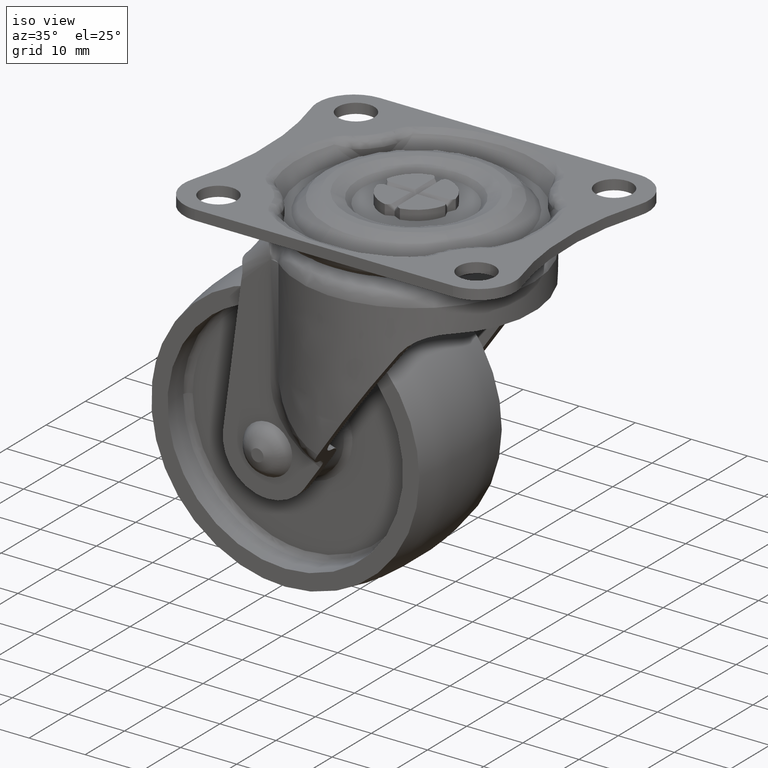
[diagram: clean part render]
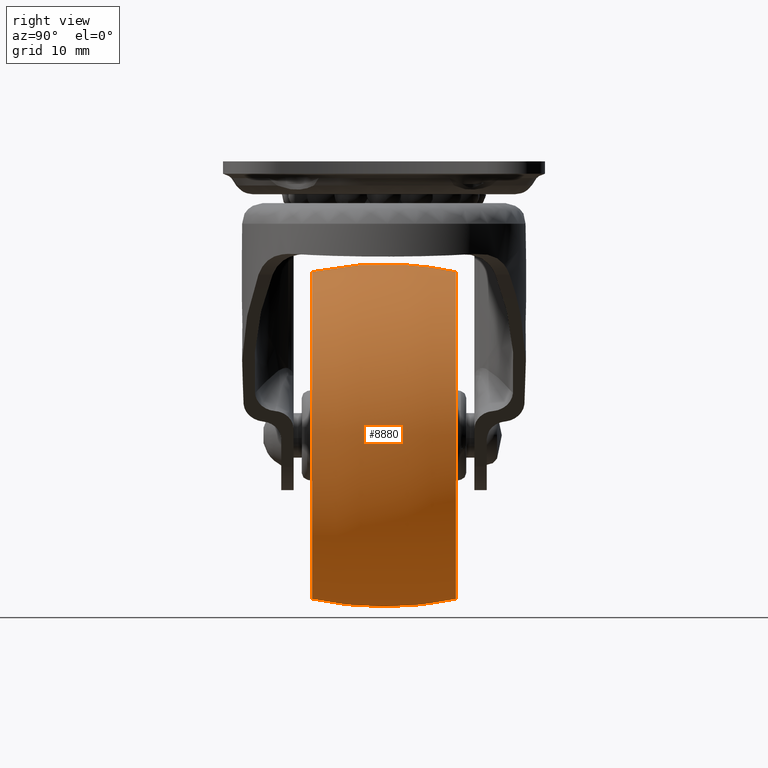
[diagram: tour spotlight — one face highlighted and labeled with its STEP entity id]
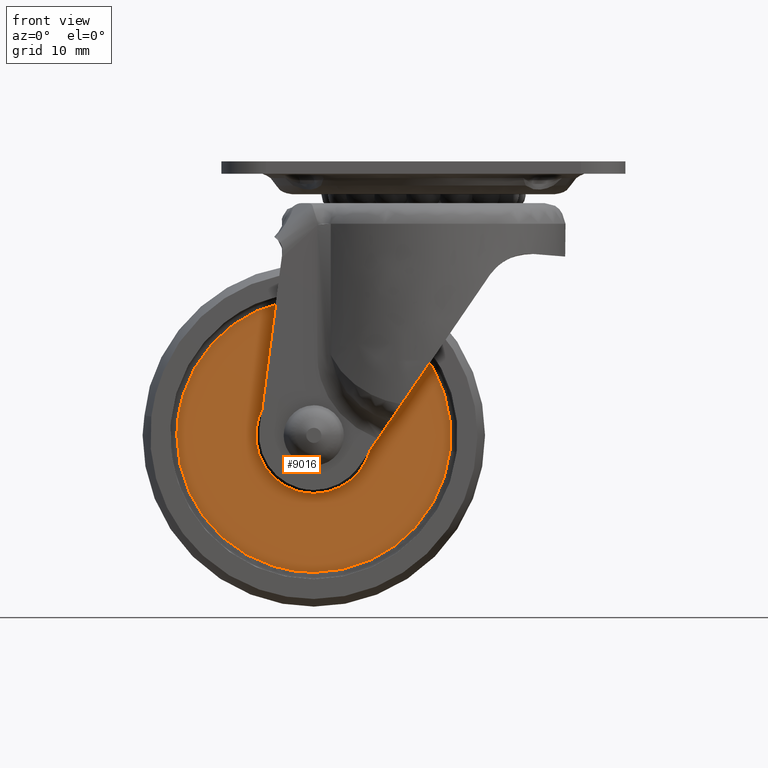
[diagram: tour spotlight — one face highlighted and labeled with its STEP entity id]
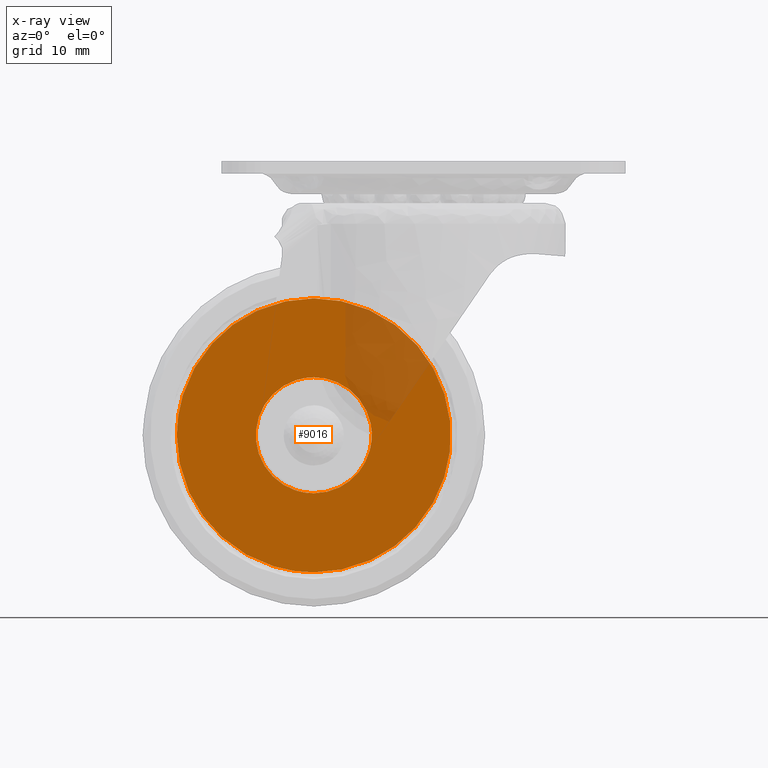
[diagram: x-ray of the same camera — body ghosted, this tour face saturated]
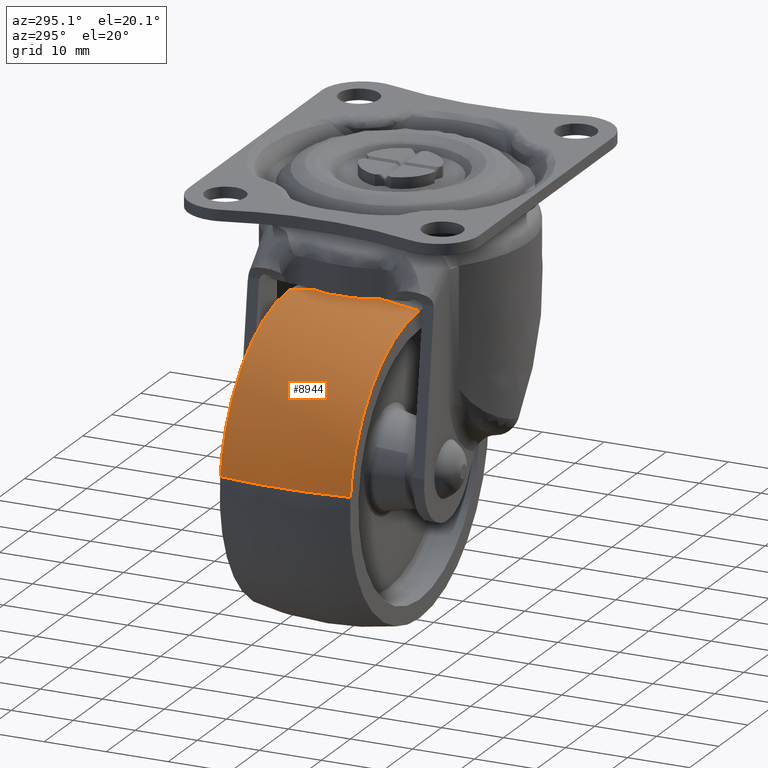
[diagram: tour spotlight — one face highlighted and labeled with its STEP entity id]
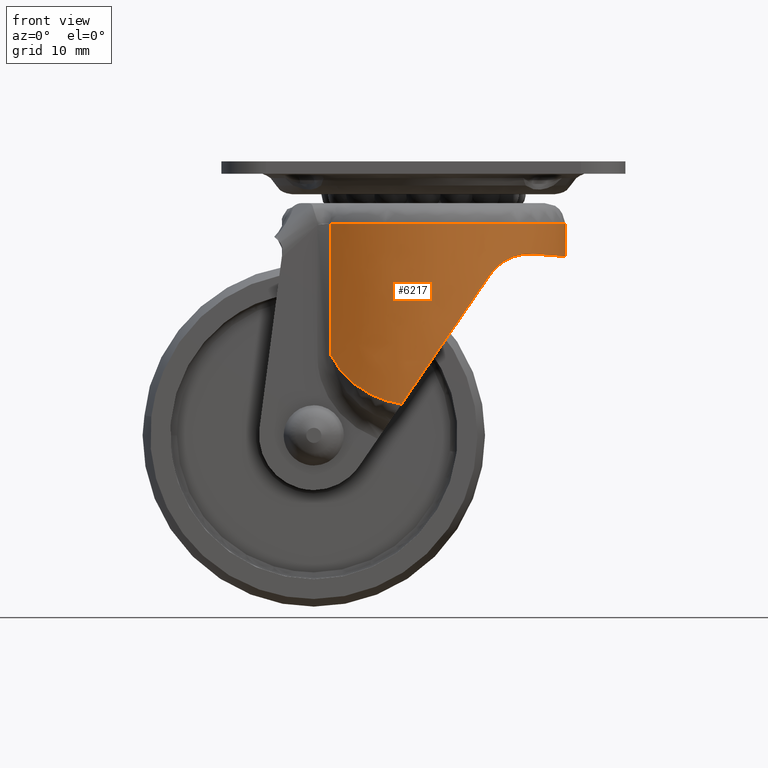
[diagram: tour spotlight — one face highlighted and labeled with its STEP entity id]
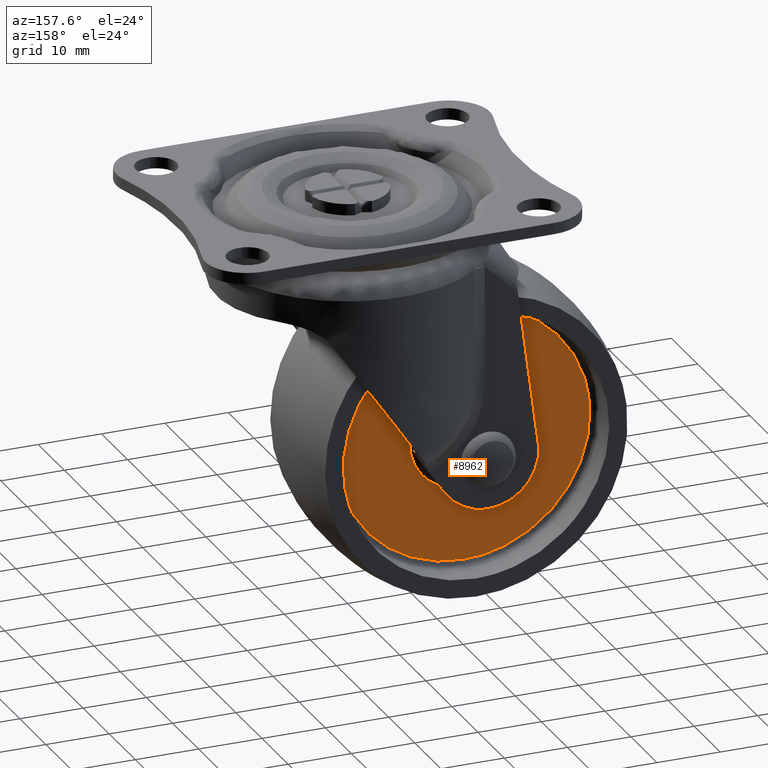
[diagram: tour spotlight — one face highlighted and labeled with its STEP entity id]
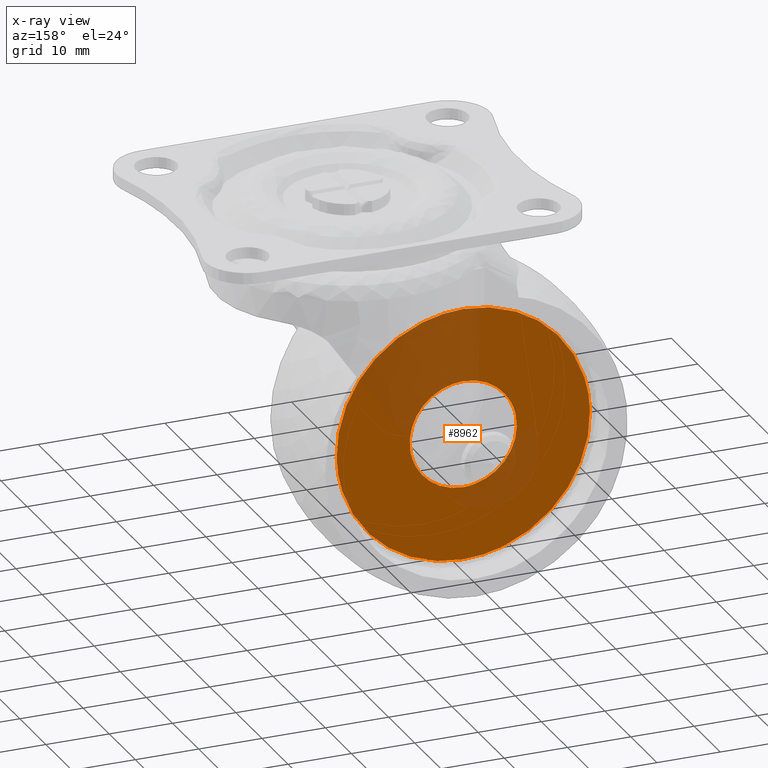
[diagram: x-ray of the same camera — body ghosted, this tour face saturated]
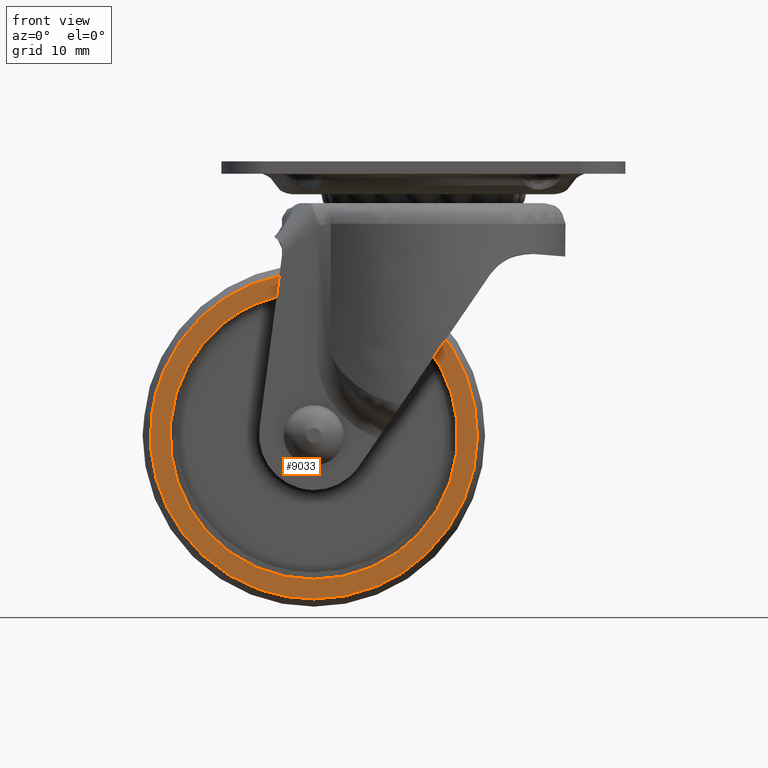
[diagram: tour spotlight — one face highlighted and labeled with its STEP entity id]
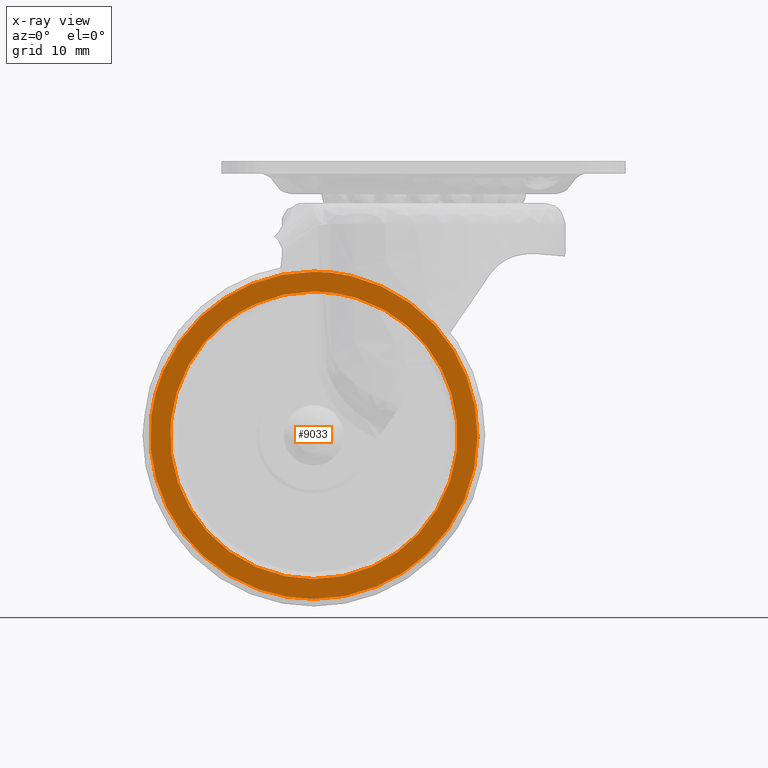
[diagram: x-ray of the same camera — body ghosted, this tour face saturated]
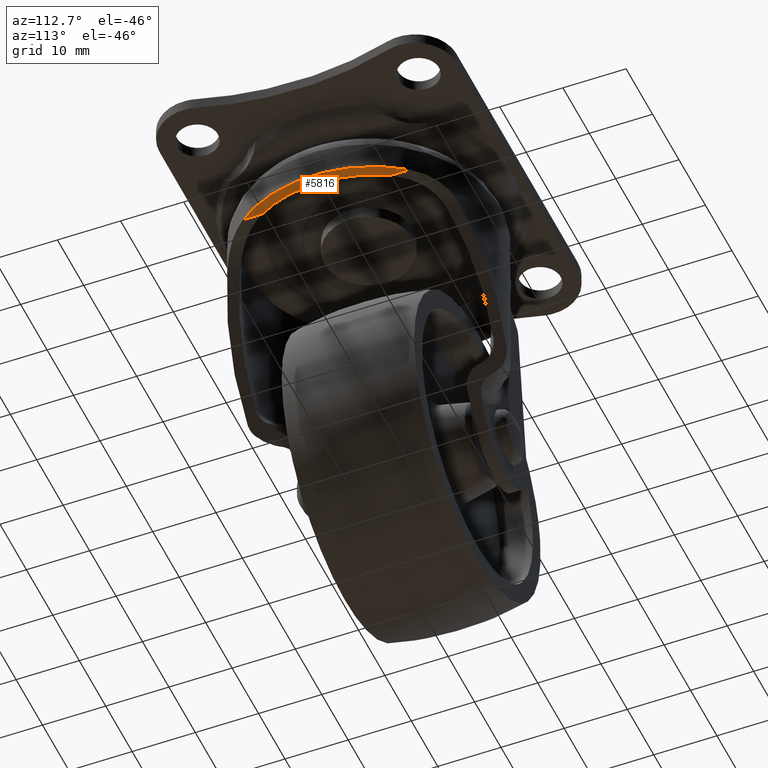
[diagram: tour spotlight — one face highlighted and labeled with its STEP entity id]
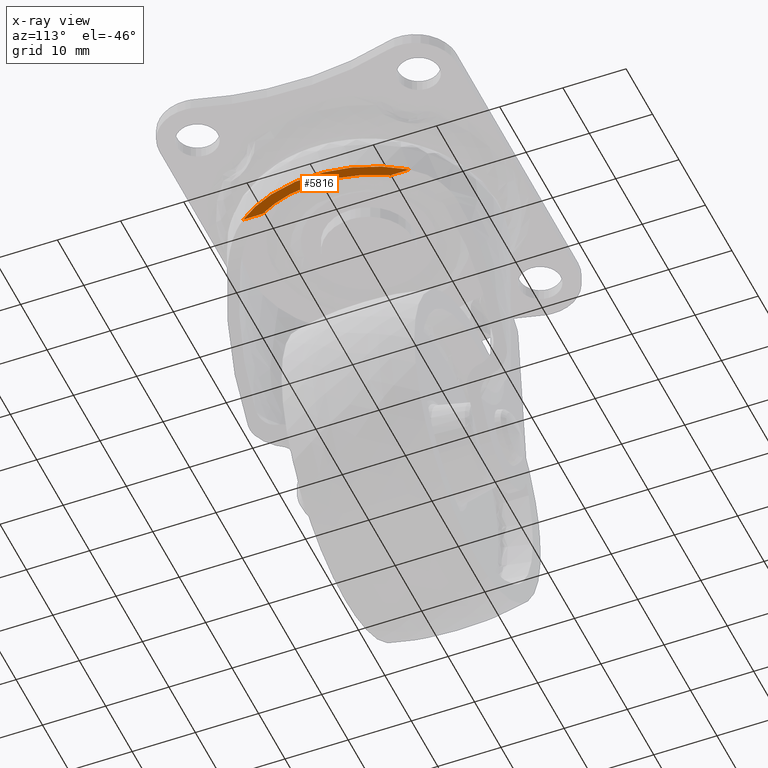
[diagram: x-ray of the same camera — body ghosted, this tour face saturated]
A machine part: a face-by-face anatomy tour. The part has 290 B-rep faces; the first image is the clean iso view, then the 7 largest visible faces are spotlighted one at a time (largest first), each with its STEP entity span.

Face 1 — right view, entity #8880. In plain terms, the highlighted face is a freeform B-spline surface patch.
Definition (entity closure, byte-faithful):
#8723=CARTESIAN_POINT('',(-23.488589900897754,-11.553957161666212,2.730352934292783));
#8724=CARTESIAN_POINT('',(-24.832791040827097,-5.856228115200762,2.886605120659473));
#8725=CARTESIAN_POINT('',(-24.832791040827100,0.0,2.886605120659473));
#8726=CARTESIAN_POINT('',(-24.832791040827097,5.856228115200755,2.886605120659473));
#8727=CARTESIAN_POINT('',(-23.488589900897754,11.553957161666201,2.730352934292783));
#8728=CARTESIAN_POINT('',(-23.646747824560510,-11.553957161666217,1.369757180596133));
#8729=CARTESIAN_POINT('',(-25.000000000000004,-5.856228115200760,1.448145418091538));
#8730=CARTESIAN_POINT('',(-25.0,0.0,1.448145418091539));
#8731=CARTESIAN_POINT('',(-25.000000000000004,5.856228115200755,1.448145418091538));
#8732=CARTESIAN_POINT('',(-23.646747824560510,11.553957161666206,1.369757180596133));
#8733=CARTESIAN_POINT('',(-23.646747824560507,-11.553957161666213,0.0));
#8734=CARTESIAN_POINT('',(-24.999999999999996,-5.856228115200760,0.0));
#8735=CARTESIAN_POINT('',(-25.0,0.0,0.0));
#8736=CARTESIAN_POINT('',(-24.999999999999996,5.856228115200755,0.0));
#8737=CARTESIAN_POINT('',(-23.646747824560507,11.553957161666203,0.0));
#8738=CARTESIAN_POINT('',(-23.646747824560496,-11.553957161666213,-23.646747824560496));
#8739=CARTESIAN_POINT('',(-25.0,-5.856228115200762,-25.0));
#8740=CARTESIAN_POINT('',(-25.0,0.0,-25.0));
#8741=CARTESIAN_POINT('',(-25.0,5.856228115200755,-25.0));
#8742=CARTESIAN_POINT('',(-23.646747824560496,11.553957161666204,-23.646747824560510));
#8743=CARTESIAN_POINT('',(0.0,-11.553957161666213,-23.646747824560507));
#8744=CARTESIAN_POINT('',(0.0,-5.856228115200760,-24.999999999999996));
#8745=CARTESIAN_POINT('',(0.0,0.0,-25.0));
#8746=CARTESIAN_POINT('',(0.0,5.856228115200755,-24.999999999999996));
#8747=CARTESIAN_POINT('',(0.0,11.553957161666203,-23.646747824560507));
#8748=CARTESIAN_POINT('',(23.646747824560496,-11.553957161666213,-23.646747824560496));
#8749=CARTESIAN_POINT('',(25.0,-5.856228115200762,-25.0));
#8750=CARTESIAN_POINT('',(25.0,0.0,-25.0));
#8751=CARTESIAN_POINT('',(25.0,5.856228115200755,-25.0));
#8752=CARTESIAN_POINT('',(23.646747824560510,11.553957161666204,-23.646747824560496));
#8753=CARTESIAN_POINT('',(23.646747824560507,-11.553957161666213,0.0));
#8754=CARTESIAN_POINT('',(24.999999999999996,-5.856228115200760,0.0));
#8755=CARTESIAN_POINT('',(25.0,0.0,0.0));
#8756=CARTESIAN_POINT('',(24.999999999999996,5.856228115200755,0.0));
#8757=CARTESIAN_POINT('',(23.646747824560507,11.553957161666203,0.0));
#8758=CARTESIAN_POINT('',(23.646747824560496,-11.553957161666213,23.646747824560496));
#8759=CARTESIAN_POINT('',(25.0,-5.856228115200762,25.0));
#8760=CARTESIAN_POINT('',(25.0,0.0,25.0));
#8761=CARTESIAN_POINT('',(25.0,5.856228115200755,25.0));
#8762=CARTESIAN_POINT('',(23.646747824560496,11.553957161666204,23.646747824560510));
#8763=CARTESIAN_POINT('',(0.0,-11.553957161666213,23.646747824560507));
#8764=CARTESIAN_POINT('',(0.0,-5.856228115200760,24.999999999999996));
#8765=CARTESIAN_POINT('',(0.0,0.0,25.0));
#8766=CARTESIAN_POINT('',(0.0,5.856228115200755,24.999999999999996));
#8767=CARTESIAN_POINT('',(0.0,11.553957161666203,23.646747824560507));
#8775=(BOUNDED_SURFACE()B_SPLINE_SURFACE(2,2,((#8723,#8728,#8733,#8738,#8743,#8748,#8753,#8758,#8763),(#8724,#8729,#8734,#8739,#8744,#8749,#8754,#8759,#8764),(#8725,#8730,#8735,#8740,#8745,#8750,#8755,#8760,#8765),(#8726,#8731,#8736,#8741,#8746,#8751,#8756,#8761,#8766),(#8727,#8732,#8737,#8742,#8747,#8752,#8757,#8762,#8767)),.UNSPECIFIED.,.F.,.F.,.U.)B_SPLINE_SURFACE_WITH_KNOTS((3,2,3),(3,2,2,2,3),(0.0,11.916559989230890,23.833119978461781),(0.0,3.313707807691297,44.735064045000797,86.156420282310307,127.577776519619800),.UNSPECIFIED.)GEOMETRIC_REPRESENTATION_ITEM()RATIONAL_B_SPLINE_SURFACE(((0.911878937677415,0.930635594963175,0.952964947987504,0.673847976955050,0.952964947987504,0.673847976955050,0.952964947987504,0.673847976955050,0.952964947987504),(0.927769534416141,0.946853049209821,0.969571518299546,0.685590595434946,0.969571518299546,0.685590595434946,0.969571518299546,0.685590595434946,0.969571518299546),(0.956886126402807,0.976568547383107,1.0,0.707106781186548,1.0,0.707106781186548,1.0,0.707106781186548,1.0),(0.927769534416141,0.946853049209821,0.969571518299546,0.685590595434946,0.969571518299546,0.685590595434946,0.969571518299546,0.685590595434946,0.969571518299546),(0.911878937677415,0.930635594963175,0.952964947987504,0.673847976955050,0.952964947987504,0.673847976955050,0.952964947987504,0.673847976955050,0.952964947987504)))REPRESENTATION_ITEM('')SURFACE());
#8776=CARTESIAN_POINT('',(-23.725322058637079,-10.499995344088690,2.757839049543086));
#8777=VERTEX_POINT('',#8776);
#8778=CARTESIAN_POINT('',(0.0,-10.499999791144599,-23.885069340095701));
#8779=VERTEX_POINT('',#8778);
#8780=CARTESIAN_POINT('',(-23.725322058637079,-10.499995344088683,2.757839049543086));
#8781=CARTESIAN_POINT('',(-23.885070264396223,-10.499995458782561,1.383546297053026));
#8782=CARTESIAN_POINT('',(-23.885070236917400,-10.499995587580750,0.000000104246847));
#8783=CARTESIAN_POINT('',(-23.885069762532282,-10.499997811108706,-23.885069290991535));
#8784=CARTESIAN_POINT('',(0.0,-10.499999791144599,-23.885069340095701));
#8792=(BOUNDED_CURVE()B_SPLINE_CURVE(2,(#8780,#8781,#8782,#8783,#8784),.UNSPECIFIED.,.F.,.U.)B_SPLINE_CURVE_WITH_KNOTS((3,2,3),(0.730000229467055,0.750000000000000,1.0),.UNSPECIFIED.)CURVE()GEOMETRIC_REPRESENTATION_ITEM()RATIONAL_B_SPLINE_CURVE((0.956886569837947,0.976568811332301,1.0,0.707106781186548,1.0))REPRESENTATION_ITEM(''));
#8793=EDGE_CURVE('',#8777,#8779,#8792,.T.);
#8794=ORIENTED_EDGE('',*,*,#8793,.F.);
#8795=CARTESIAN_POINT('',(-23.725321810946721,10.499996496538140,2.757839036551218));
#8796=VERTEX_POINT('',#8795);
#8797=CARTESIAN_POINT('',(-23.725322058637072,-10.499995344088688,2.757839049543086));
#8798=CARTESIAN_POINT('',(-24.832794710320275,-5.309191424314765,2.886573552506501));
#8799=CARTESIAN_POINT('',(-24.832794709862167,1.065865E-014,2.886573556447806));
#8800=CARTESIAN_POINT('',(-24.832794709404052,5.309192020326665,2.886573560389111));
#8801=CARTESIAN_POINT('',(-23.725321810946713,10.499996496538138,2.757839036551217));
#8809=(BOUNDED_CURVE()B_SPLINE_CURVE(2,(#8797,#8798,#8799,#8800,#8801),.UNSPECIFIED.,.F.,.U.)B_SPLINE_CURVE_WITH_KNOTS((3,2,3),(0.396753721325214,0.500000000000000,0.603246289944605),.UNSPECIFIED.)CURVE()GEOMETRIC_REPRESENTATION_ITEM()RATIONAL_B_SPLINE_CURVE((0.914874625345053,0.930414096261488,0.956886118190660,0.930414093371942,0.914874621952640))REPRESENTATION_ITEM(''));
#8810=EDGE_CURVE('',#8777,#8796,#8809,.T.);
#8811=ORIENTED_EDGE('',*,*,#8810,.T.);
#8812=CARTESIAN_POINT('',(0.0,10.499999791144560,-23.885069340095701));
#8813=VERTEX_POINT('',#8812);
#8814=CARTESIAN_POINT('',(-23.725321810946713,10.499996496538136,2.757839036551218));
#8815=CARTESIAN_POINT('',(-23.885070024859385,10.499996581509228,1.383546277082547));
#8816=CARTESIAN_POINT('',(-23.885070004501831,10.499996676929509,0.000000077230780));
#8817=CARTESIAN_POINT('',(-23.885069653055851,10.499998324232719,-23.885069303717113));
#8818=CARTESIAN_POINT('',(0.0,10.499999791144560,-23.885069340095701));
#8826=(BOUNDED_CURVE()B_SPLINE_CURVE(2,(#8814,#8815,#8816,#8817,#8818),.UNSPECIFIED.,.F.,.U.)B_SPLINE_CURVE_WITH_KNOTS((3,2,3),(0.730000229355908,0.750000000000000,1.0),.UNSPECIFIED.)CURVE()GEOMETRIC_REPRESENTATION_ITEM()RATIONAL_B_SPLINE_CURVE((0.956886569619183,0.976568811202085,1.0,0.707106781186548,1.0))REPRESENTATION_ITEM(''));
#8827=EDGE_CURVE('',#8796,#8813,#8826,.T.);
#8828=ORIENTED_EDGE('',*,*,#8827,.T.);
#8829=CARTESIAN_POINT('',(0.0,10.499977525427109,23.885074122527499));
#8830=VERTEX_POINT('',#8829);
#8831=CARTESIAN_POINT('',(0.0,10.499999791144560,-23.885069340095701));
#8832=CARTESIAN_POINT('',(23.885069340095708,10.499999791144560,-23.885069340095708));
#8833=CARTESIAN_POINT('',(23.885069340095701,10.499988658285830,0.000002391215899));
#8834=CARTESIAN_POINT('',(23.885069340095708,10.499977525427107,23.885074122527499));
#8835=CARTESIAN_POINT('',(0.0,10.499977525427109,23.885074122527499));
#8843=(BOUNDED_CURVE()B_SPLINE_CURVE(2,(#8831,#8832,#8833,#8834,#8835),.UNSPECIFIED.,.F.,.U.)B_SPLINE_CURVE_WITH_KNOTS((3,2,3),(0.0,0.250000000000000,0.500000000000000),.UNSPECIFIED.)CURVE()GEOMETRIC_REPRESENTATION_ITEM()RATIONAL_B_SPLINE_CURVE((1.0,0.707106781186548,1.0,0.707106781186548,1.0))REPRESENTATION_ITEM(''));
#8844=EDGE_CURVE('',#8813,#8830,#8843,.T.);
#8845=ORIENTED_EDGE('',*,*,#8844,.T.);
#8846=CARTESIAN_POINT('',(0.0,-10.499976511649120,23.885074340275381));
#8847=VERTEX_POINT('',#8846);
#8848=CARTESIAN_POINT('',(0.0,-10.499976511649118,23.885074340275384));
#8849=CARTESIAN_POINT('',(0.0,-5.309181684749531,25.000000000000004));
#8850=CARTESIAN_POINT('',(0.0,0.0,25.0));
#8851=CARTESIAN_POINT('',(0.0,5.309182209044637,24.999999999999996));
#8852=CARTESIAN_POINT('',(0.0,10.499977525427111,23.885074122527492));
#8860=(BOUNDED_CURVE()B_SPLINE_CURVE(2,(#8848,#8849,#8850,#8851,#8852),.UNSPECIFIED.,.F.,.U.)B_SPLINE_CURVE_WITH_KNOTS((3,2,3),(0.396753905487988,0.500000000000000,0.603246104425760),.UNSPECIFIED.)CURVE()GEOMETRIC_REPRESENTATION_ITEM()RATIONAL_B_SPLINE_CURVE((0.956095676788809,0.972335292353839,1.0,0.972335289697458,0.956095673670135))REPRESENTATION_ITEM(''));
#8861=EDGE_CURVE('',#8847,#8830,#8860,.T.);
#8862=ORIENTED_EDGE('',*,*,#8861,.F.);
#8863=CARTESIAN_POINT('',(0.0,-10.499999791144599,-23.885069340095701));
#8864=CARTESIAN_POINT('',(23.885069340095708,-10.499999791144601,-23.885069340095708));
#8865=CARTESIAN_POINT('',(23.885069340095701,-10.499988151396860,0.000002500089841));
#8866=CARTESIAN_POINT('',(23.885069340095708,-10.499976511649120,23.885074340275388));
#8867=CARTESIAN_POINT('',(0.0,-10.499976511649120,23.885074340275381));
#8875=(BOUNDED_CURVE()B_SPLINE_CURVE(2,(#8863,#8864,#8865,#8866,#8867),.UNSPECIFIED.,.F.,.U.)B_SPLINE_CURVE_WITH_KNOTS((3,2,3),(0.0,0.250000000000000,0.500000000000000),.UNSPECIFIED.)CURVE()GEOMETRIC_REPRESENTATION_ITEM()RATIONAL_B_SPLINE_CURVE((1.0,0.707106781186548,1.0,0.707106781186548,1.0))REPRESENTATION_ITEM(''));
#8876=EDGE_CURVE('',#8779,#8847,#8875,.T.);
#8877=ORIENTED_EDGE('',*,*,#8876,.F.);
#8878=EDGE_LOOP('',(#8794,#8811,#8828,#8845,#8862,#8877));
#8879=FACE_OUTER_BOUND('',#8878,.T.);
#8880=ADVANCED_FACE('',(#8879),#8775,.T.);

Face 2 — front view, entity #9016. An x-ray twin of the same camera follows (body ghosted, this face saturated) — the face is partly hidden behind the body. In plain terms, the highlighted face is a freeform B-spline surface patch.
Definition (entity closure, byte-faithful):
#8443=CARTESIAN_POINT('',(-2.637195431354974,-5.500000000000000,8.044538794794242));
#8444=VERTEX_POINT('',#8443);
#8458=CARTESIAN_POINT('',(0.0,-5.500000000000000,-8.465778433459008));
#8459=VERTEX_POINT('',#8458);
#8460=CARTESIAN_POINT('',(-2.637195431354975,-5.500000000000000,8.044538794794242));
#8461=CARTESIAN_POINT('',(-8.465778433459009,-5.500000000000002,6.133787575320977));
#8462=CARTESIAN_POINT('',(-8.465778433459009,-5.500000000000000,1.224606E-015));
#8463=CARTESIAN_POINT('',(-8.465778433459009,-5.500000000000000,-8.465778433459008));
#8464=CARTESIAN_POINT('',(0.0,-5.500000000000000,-8.465778433459008));
#8472=(BOUNDED_CURVE()B_SPLINE_CURVE(2,(#8460,#8461,#8462,#8463,#8464),.UNSPECIFIED.,.F.,.U.)B_SPLINE_CURVE_WITH_KNOTS((3,2,3),(0.552968606068550,0.750000000000000,1.0),.UNSPECIFIED.)CURVE()GEOMETRIC_REPRESENTATION_ITEM()RATIONAL_B_SPLINE_CURVE((0.902183240994092,0.769163363296465,1.0,0.707106781186547,1.0))REPRESENTATION_ITEM(''));
#8473=EDGE_CURVE('',#8444,#8459,#8472,.T.);
#8475=CARTESIAN_POINT('',(8.295235762155642,-5.500000000000000,1.690700445148417));
#8476=VERTEX_POINT('',#8475);
#8477=CARTESIAN_POINT('',(0.0,-5.500000000000000,-8.465778433459008));
#8478=CARTESIAN_POINT('',(8.465778433459009,-5.500000000000000,-8.465778433459008));
#8479=CARTESIAN_POINT('',(8.465778433459009,-5.500000000000000,1.224606E-015));
#8480=CARTESIAN_POINT('',(8.465778433459009,-5.500000000000000,0.853951629235820));
#8481=CARTESIAN_POINT('',(8.295235762155642,-5.500000000000000,1.690700445148418));
#8489=(BOUNDED_CURVE()B_SPLINE_CURVE(2,(#8477,#8478,#8479,#8480,#8481),.UNSPECIFIED.,.F.,.U.)B_SPLINE_CURVE_WITH_KNOTS((3,2,3),(0.0,0.250000000000000,0.284232961523053),.UNSPECIFIED.)CURVE()GEOMETRIC_REPRESENTATION_ITEM()RATIONAL_B_SPLINE_CURVE((1.0,0.707106781186547,1.0,0.959893590839984,0.930770870972789))REPRESENTATION_ITEM(''));
#8490=EDGE_CURVE('',#8459,#8476,#8489,.T.);
#8537=CARTESIAN_POINT('',(0.0,-5.500000000000000,8.465778433459011));
#8538=VERTEX_POINT('',#8537);
#8539=CARTESIAN_POINT('',(8.295235762155642,-5.500000000000000,1.690700445148418));
#8540=CARTESIAN_POINT('',(6.914367558386649,-5.500000000000001,8.465778433459013));
#8541=CARTESIAN_POINT('',(0.0,-5.500000000000000,8.465778433459011));
#8549=(BOUNDED_CURVE()B_SPLINE_CURVE(2,(#8539,#8540,#8541),.UNSPECIFIED.,.F.,.U.)B_SPLINE_CURVE_WITH_KNOTS((3,3),(0.284232961523053,0.500000000000000),.UNSPECIFIED.)CURVE()GEOMETRIC_REPRESENTATION_ITEM()RATIONAL_B_SPLINE_CURVE((0.930770870972789,0.747213190346564,1.0))REPRESENTATION_ITEM(''));
#8550=EDGE_CURVE('',#8476,#8538,#8549,.T.);
#8552=CARTESIAN_POINT('',(0.0,-5.500000000000000,8.465778433459011));
#8553=CARTESIAN_POINT('',(-1.352240053024610,-5.500000000000000,8.465778433459011));
#8554=CARTESIAN_POINT('',(-2.637195431354975,-5.500000000000000,8.044538794794242));
#8562=(BOUNDED_CURVE()B_SPLINE_CURVE(2,(#8552,#8553,#8554),.UNSPECIFIED.,.F.,.U.)B_SPLINE_CURVE_WITH_KNOTS((3,3),(0.500000000000000,0.552968606068551),.UNSPECIFIED.)CURVE()GEOMETRIC_REPRESENTATION_ITEM()RATIONAL_B_SPLINE_CURVE((1.0,0.937943417890082,0.902183240994091))REPRESENTATION_ITEM(''));
#8563=EDGE_CURVE('',#8538,#8444,#8562,.T.);
#8598=CARTESIAN_POINT('',(19.866233229655158,-5.500000000000210,-2.309284642152380));
#8599=VERTEX_POINT('',#8598);
#8600=CARTESIAN_POINT('',(0.0,-5.500000000000000,20.0));
#8601=VERTEX_POINT('',#8600);
#8602=CARTESIAN_POINT('',(19.866233229655158,-5.500000000000210,-2.309284642152381));
#8603=CARTESIAN_POINT('',(19.999999999999996,-5.500000000000000,-1.158516584790575));
#8604=CARTESIAN_POINT('',(20.0,-5.500000000000000,1.224606E-015));
#8605=CARTESIAN_POINT('',(19.999999999999996,-5.500000000000001,19.999999999999996));
#8606=CARTESIAN_POINT('',(0.0,-5.500000000000000,20.0));
#8614=(BOUNDED_CURVE()B_SPLINE_CURVE(2,(#8602,#8603,#8604,#8605,#8606),.UNSPECIFIED.,.F.,.U.)B_SPLINE_CURVE_WITH_KNOTS((3,2,3),(0.229999999952238,0.250000000000000,0.500000000000000),.UNSPECIFIED.)CURVE()GEOMETRIC_REPRESENTATION_ITEM()RATIONAL_B_SPLINE_CURVE((0.956886118096653,0.976568542438967,1.0,0.707106781186548,1.0))REPRESENTATION_ITEM(''));
#8615=EDGE_CURVE('',#8599,#8601,#8614,.T.);
#8634=CARTESIAN_POINT('',(-20.000000457237331,-5.500000000000210,1.773424E-015));
#8635=VERTEX_POINT('',#8634);
#8649=CARTESIAN_POINT('',(0.0,-5.500000000000000,20.0));
#8650=CARTESIAN_POINT('',(-20.000000000354873,-5.499999999999999,20.000000000000004));
#8651=CARTESIAN_POINT('',(-20.000000457237324,-5.500000000000209,1.773424E-015));
#8659=(BOUNDED_CURVE()B_SPLINE_CURVE(2,(#8649,#8650,#8651),.UNSPECIFIED.,.F.,.U.)B_SPLINE_CURVE_WITH_KNOTS((3,3),(0.500000000000000,0.750000000003137),.UNSPECIFIED.)CURVE()GEOMETRIC_REPRESENTATION_ITEM()RATIONAL_B_SPLINE_CURVE((1.0,0.707106781182873,1.000000000007350))REPRESENTATION_ITEM(''));
#8660=EDGE_CURVE('',#8601,#8635,#8659,.T.);
#8688=CARTESIAN_POINT('',(0.0,-5.500000000000000,-20.0));
#8689=VERTEX_POINT('',#8688);
#8690=CARTESIAN_POINT('',(0.0,-5.500000000000000,-20.0));
#8691=CARTESIAN_POINT('',(17.809834011476283,-5.500000000000001,-20.0));
#8692=CARTESIAN_POINT('',(19.866233229655158,-5.500000000000210,-2.309284642152380));
#8700=(BOUNDED_CURVE()B_SPLINE_CURVE(2,(#8690,#8691,#8692),.UNSPECIFIED.,.F.,.U.)B_SPLINE_CURVE_WITH_KNOTS((3,3),(0.0,0.229999999952238),.UNSPECIFIED.)CURVE()GEOMETRIC_REPRESENTATION_ITEM()RATIONAL_B_SPLINE_CURVE((1.0,0.730538238747581,0.956886118096652))REPRESENTATION_ITEM(''));
#8701=EDGE_CURVE('',#8689,#8599,#8700,.T.);
#8703=CARTESIAN_POINT('',(-20.000000457237327,-5.500000000000210,1.773424E-015));
#8704=CARTESIAN_POINT('',(-19.999999999645215,-5.500000000000000,-20.0));
#8705=CARTESIAN_POINT('',(0.0,-5.500000000000000,-20.0));
#8713=(BOUNDED_CURVE()B_SPLINE_CURVE(2,(#8703,#8704,#8705),.UNSPECIFIED.,.F.,.U.)B_SPLINE_CURVE_WITH_KNOTS((3,3),(0.750000000003136,1.0),.UNSPECIFIED.)CURVE()GEOMETRIC_REPRESENTATION_ITEM()RATIONAL_B_SPLINE_CURVE((0.999999999992652,0.707106781190222,1.0))REPRESENTATION_ITEM(''));
#8714=EDGE_CURVE('',#8635,#8689,#8713,.T.);
#8999=CARTESIAN_POINT('',(-21.997994483184641,-5.500000000000000,-21.997999922472239));
#9000=CARTESIAN_POINT('',(-21.997994483184641,-5.500000000000000,21.998000995355849));
#9001=CARTESIAN_POINT('',(21.997884465432239,-5.500000000000000,-21.997999922472239));
#9002=CARTESIAN_POINT('',(21.997884465432239,-5.500000000000000,21.998000995355849));
#9003=B_SPLINE_SURFACE_WITH_KNOTS('',1,1,((#8999,#9001),(#9000,#9002)),.UNSPECIFIED.,.F.,.F.,.U.,(2,2),(2,2),(0.0,43.996000917828077),(0.0,43.995878948616877),.UNSPECIFIED.);
#9004=ORIENTED_EDGE('',*,*,#8701,.T.);
#9005=ORIENTED_EDGE('',*,*,#8615,.T.);
#9006=ORIENTED_EDGE('',*,*,#8660,.T.);
#9007=ORIENTED_EDGE('',*,*,#8714,.T.);
#9008=EDGE_LOOP('',(#9004,#9005,#9006,#9007));
#9009=FACE_OUTER_BOUND('',#9008,.T.);
#9010=ORIENTED_EDGE('',*,*,#8490,.F.);
#9011=ORIENTED_EDGE('',*,*,#8473,.F.);
#9012=ORIENTED_EDGE('',*,*,#8563,.F.);
#9013=ORIENTED_EDGE('',*,*,#8550,.F.);
#9014=EDGE_LOOP('',(#9010,#9011,#9012,#9013));
#9015=FACE_BOUND('',#9014,.T.);
#9016=ADVANCED_FACE('',(#9009,#9015),#9003,.F.);

Face 3 — auxiliary view, entity #8944. In plain terms, the highlighted face is a freeform B-spline surface patch.
Definition (entity closure, byte-faithful):
#8776=CARTESIAN_POINT('',(-23.725322058637079,-10.499995344088690,2.757839049543086));
#8777=VERTEX_POINT('',#8776);
#8795=CARTESIAN_POINT('',(-23.725321810946721,10.499996496538140,2.757839036551218));
#8796=VERTEX_POINT('',#8795);
#8797=CARTESIAN_POINT('',(-23.725322058637072,-10.499995344088688,2.757839049543086));
#8798=CARTESIAN_POINT('',(-24.832794710320275,-5.309191424314765,2.886573552506501));
#8799=CARTESIAN_POINT('',(-24.832794709862167,1.065865E-014,2.886573556447806));
#8800=CARTESIAN_POINT('',(-24.832794709404052,5.309192020326665,2.886573560389111));
#8801=CARTESIAN_POINT('',(-23.725321810946713,10.499996496538138,2.757839036551217));
#8809=(BOUNDED_CURVE()B_SPLINE_CURVE(2,(#8797,#8798,#8799,#8800,#8801),.UNSPECIFIED.,.F.,.U.)B_SPLINE_CURVE_WITH_KNOTS((3,2,3),(0.396753721325214,0.500000000000000,0.603246289944605),.UNSPECIFIED.)CURVE()GEOMETRIC_REPRESENTATION_ITEM()RATIONAL_B_SPLINE_CURVE((0.914874625345053,0.930414096261488,0.956886118190660,0.930414093371942,0.914874621952640))REPRESENTATION_ITEM(''));
#8810=EDGE_CURVE('',#8777,#8796,#8809,.T.);
#8829=CARTESIAN_POINT('',(0.0,10.499977525427109,23.885074122527499));
#8830=VERTEX_POINT('',#8829);
#8846=CARTESIAN_POINT('',(0.0,-10.499976511649120,23.885074340275381));
#8847=VERTEX_POINT('',#8846);
#8848=CARTESIAN_POINT('',(0.0,-10.499976511649118,23.885074340275384));
#8849=CARTESIAN_POINT('',(0.0,-5.309181684749531,25.000000000000004));
#8850=CARTESIAN_POINT('',(0.0,0.0,25.0));
#8851=CARTESIAN_POINT('',(0.0,5.309182209044637,24.999999999999996));
#8852=CARTESIAN_POINT('',(0.0,10.499977525427111,23.885074122527492));
#8860=(BOUNDED_CURVE()B_SPLINE_CURVE(2,(#8848,#8849,#8850,#8851,#8852),.UNSPECIFIED.,.F.,.U.)B_SPLINE_CURVE_WITH_KNOTS((3,2,3),(0.396753905487988,0.500000000000000,0.603246104425760),.UNSPECIFIED.)CURVE()GEOMETRIC_REPRESENTATION_ITEM()RATIONAL_B_SPLINE_CURVE((0.956095676788809,0.972335292353839,1.0,0.972335289697458,0.956095673670135))REPRESENTATION_ITEM(''));
#8861=EDGE_CURVE('',#8847,#8830,#8860,.T.);
#8881=CARTESIAN_POINT('',(0.153417894220526,-11.553950468367773,23.646749414267187));
#8882=CARTESIAN_POINT('',(0.162197657205224,-5.856224628267748,25.000000000000004));
#8883=CARTESIAN_POINT('',(0.162197657205224,0.0,24.999999999999993));
#8884=CARTESIAN_POINT('',(0.162197657205224,5.856224628267746,24.999999999999996));
#8885=CARTESIAN_POINT('',(0.153417894220526,11.553950468367773,23.646749414267187));
#8886=CARTESIAN_POINT('',(0.076812158792902,-11.553950468367775,23.646749414267184));
#8887=CARTESIAN_POINT('',(0.081207946859027,-5.856224628267749,25.0));
#8888=CARTESIAN_POINT('',(0.081207946859027,0.0,24.999999999999989));
#8889=CARTESIAN_POINT('',(0.081207946859027,5.856224628267747,25.0));
#8890=CARTESIAN_POINT('',(0.076812158792902,11.553950468367766,23.646749414267184));
#8891=CARTESIAN_POINT('',(-21.057234104939312,-11.553950468367772,23.646749414267180));
#8892=CARTESIAN_POINT('',(-22.262292520673597,-5.856224628267749,25.0));
#8893=CARTESIAN_POINT('',(-22.262292520673586,0.0,24.999999999999996));
#8894=CARTESIAN_POINT('',(-22.262292520673597,5.856224628267746,25.0));
#8895=CARTESIAN_POINT('',(-21.057234104939312,11.553950468367768,23.646749414267180));
#8896=CARTESIAN_POINT('',(-23.497863448628944,-11.553950468367770,2.650588549762431));
#8897=CARTESIAN_POINT('',(-24.842593623514688,-5.856224628267748,2.802275804727740));
#8898=CARTESIAN_POINT('',(-24.842593623514698,0.0,2.802275804727739));
#8899=CARTESIAN_POINT('',(-24.842593623514691,5.856224628267747,2.802275804727740));
#8900=CARTESIAN_POINT('',(-23.497863448628944,11.553950468367770,2.650588549762431));
#8901=CARTESIAN_POINT('',(-23.507113599354476,-11.553950468367775,2.571011676216929));
#8902=CARTESIAN_POINT('',(-24.852373139679347,-5.856224628267749,2.718144924673788));
#8903=CARTESIAN_POINT('',(-24.852373139679351,0.0,2.718144924673788));
#8904=CARTESIAN_POINT('',(-24.852373139679351,5.856224628267746,2.718144924673789));
#8905=CARTESIAN_POINT('',(-23.507113599354479,11.553950468367766,2.571011676216929));
#8913=(BOUNDED_SURFACE()B_SPLINE_SURFACE(2,2,((#8881,#8886,#8891,#8896,#8901),(#8882,#8887,#8892,#8897,#8902),(#8883,#8888,#8893,#8898,#8903),(#8884,#8889,#8894,#8899,#8904),(#8885,#8890,#8895,#8900,#8905)),.UNSPECIFIED.,.F.,.F.,.U.)B_SPLINE_SURFACE_WITH_KNOTS((3,2,3),(3,1,1,3),(0.0,11.916552869971831,23.833105739943662),(0.0,0.190329430176928,38.256178338765842,38.446545746578352),.UNSPECIFIED.)GEOMETRIC_REPRESENTATION_ITEM()RATIONAL_B_SPLINE_SURFACE(((0.955532845851322,0.954248906506475,0.696177348645076,0.912957672450386,0.914036396701793),(0.972184162951930,0.970877849408998,0.708309082097129,0.928867065590986,0.929964587918934),(1.002694620241228,1.001347310120614,0.730538238691624,0.958018084515319,0.959150050839978),(0.972184162951930,0.970877849408998,0.708309082097129,0.928867065590986,0.929964587918934),(0.955532845851322,0.954248906506475,0.696177348645076,0.912957672450386,0.914036396701793)))REPRESENTATION_ITEM('')SURFACE());
#8914=CARTESIAN_POINT('',(0.0,-10.499976511649120,23.885074340275381));
#8915=CARTESIAN_POINT('',(-21.269485542738106,-10.499985927868904,23.885071895328210));
#8916=CARTESIAN_POINT('',(-23.725322058637079,-10.499995344088683,2.757839049543086));
#8924=(BOUNDED_CURVE()B_SPLINE_CURVE(2,(#8914,#8915,#8916),.UNSPECIFIED.,.F.,.U.)B_SPLINE_CURVE_WITH_KNOTS((3,3),(0.500000000000000,0.730000229467055),.UNSPECIFIED.)CURVE()GEOMETRIC_REPRESENTATION_ITEM()RATIONAL_B_SPLINE_CURVE((1.0,0.730537969854247,0.956886569837947))REPRESENTATION_ITEM(''));
#8925=EDGE_CURVE('',#8847,#8777,#8924,.T.);
#8926=ORIENTED_EDGE('',*,*,#8925,.F.);
#8927=ORIENTED_EDGE('',*,*,#8861,.T.);
#8928=CARTESIAN_POINT('',(0.0,10.499977525427109,23.885074122527499));
#8929=CARTESIAN_POINT('',(-21.269485405729409,10.499987010982620,23.885071772163791));
#8930=CARTESIAN_POINT('',(-23.725321810946713,10.499996496538136,2.757839036551218));
#8938=(BOUNDED_CURVE()B_SPLINE_CURVE(2,(#8928,#8929,#8930),.UNSPECIFIED.,.F.,.U.)B_SPLINE_CURVE_WITH_KNOTS((3,3),(0.500000000000000,0.730000229355908),.UNSPECIFIED.)CURVE()GEOMETRIC_REPRESENTATION_ITEM()RATIONAL_B_SPLINE_CURVE((1.0,0.730537969984463,0.956886569619183))REPRESENTATION_ITEM(''));
#8939=EDGE_CURVE('',#8830,#8796,#8938,.T.);
#8940=ORIENTED_EDGE('',*,*,#8939,.T.);
#8941=ORIENTED_EDGE('',*,*,#8810,.F.);
#8942=EDGE_LOOP('',(#8926,#8927,#8940,#8941));
#8943=FACE_OUTER_BOUND('',#8942,.T.);
#8944=ADVANCED_FACE('',(#8943),#8913,.T.);

Face 4 — front view, entity #6217. In plain terms, the highlighted face is a freeform B-spline surface patch.
Definition (entity closure, byte-faithful):
#2268=CARTESIAN_POINT('',(-13.536819851418221,-15.726315789473700,-9.099995000000000));
#2269=VERTEX_POINT('',#2268);
#2434=CARTESIAN_POINT('',(-13.536819851418221,15.726315789473700,-9.099995000000000));
#2435=VERTEX_POINT('',#2434);
#2469=CARTESIAN_POINT('',(-13.536819851418221,15.726315789473700,-9.099995000000000));
#2470=CARTESIAN_POINT('',(1.425380140302373,28.605403846727505,-9.099995000000000));
#2471=CARTESIAN_POINT('',(15.033137320313640,14.302701923363751,-9.099995000000000));
#2472=CARTESIAN_POINT('',(28.640894500324922,-6.938894E-015,-9.099995000000000));
#2473=CARTESIAN_POINT('',(15.033137320313640,-14.302701923363760,-9.099995000000000));
#2474=CARTESIAN_POINT('',(1.425380140302373,-28.605403846727505,-9.099995000000000));
#2475=CARTESIAN_POINT('',(-13.536819851418210,-15.726315789473700,-9.099995000000000));
#2483=(BOUNDED_CURVE()B_SPLINE_CURVE(2,(#2469,#2470,#2471,#2472,#2473,#2474,#2475),.UNSPECIFIED.,.F.,.U.)B_SPLINE_CURVE_WITH_KNOTS((3,2,2,3),(0.0,0.333333333333333,0.666666666666667,1.0),.UNSPECIFIED.)CURVE()GEOMETRIC_REPRESENTATION_ITEM()RATIONAL_B_SPLINE_CURVE((1.0,0.724488545557284,1.0,0.724488545557284,1.0,0.724488545557284,1.0))REPRESENTATION_ITEM(''));
#2484=EDGE_CURVE('',#2435,#2269,#2483,.T.);
#4581=CARTESIAN_POINT('',(-13.536819851418301,-15.726315789473650,-28.281603139059850));
#4582=VERTEX_POINT('',#4581);
#4596=CARTESIAN_POINT('',(-13.536819851418221,-15.726315789473700,-9.099995000000000));
#4597=CARTESIAN_POINT('',(-13.536819851418301,-15.726315789473650,-28.281603139059850));
#4598=QUASI_UNIFORM_CURVE('',1,(#4596,#4597),.UNSPECIFIED.,.F.,.U.);
#4599=EDGE_CURVE('',#2269,#4582,#4598,.T.);
#4856=CARTESIAN_POINT('',(-13.536819851410900,15.726315789479999,-28.281603139075049));
#4857=VERTEX_POINT('',#4856);
#4858=CARTESIAN_POINT('',(-13.536819851410900,15.726315789479999,-28.281603139075049));
#4859=CARTESIAN_POINT('',(-13.536819851418221,15.726315789473700,-9.099995000000000));
#4860=QUASI_UNIFORM_CURVE('',1,(#4858,#4859),.UNSPECIFIED.,.F.,.U.);
#4861=EDGE_CURVE('',#4857,#2435,#4860,.T.);
#5176=CARTESIAN_POINT('',(-3.206759390951151,20.500712041501050,-35.461347251662097));
#5177=VERTEX_POINT('',#5176);
#5205=CARTESIAN_POINT('',(-3.206759390951130,20.500712041501050,-35.461347251662097));
#5206=CARTESIAN_POINT('',(-3.492089954716481,20.456080105643029,-35.414903710843461));
#5207=CARTESIAN_POINT('',(-3.774726366782582,20.405770154518130,-35.361052037543907));
#5208=CARTESIAN_POINT('',(-4.194732096272557,20.322084079303419,-35.269323581220704));
#5209=CARTESIAN_POINT('',(-4.334075442403953,20.292817997393328,-35.236920814057108));
#5210=CARTESIAN_POINT('',(-4.611455579416584,20.231587917285371,-35.168471677936417));
#5211=CARTESIAN_POINT('',(-4.749638305119006,20.199587544063139,-35.132383742800087));
#5212=CARTESIAN_POINT('',(-5.435152964068215,20.033472687798501,-34.943437019937072));
#5213=CARTESIAN_POINT('',(-5.966265421165112,19.881149563466170,-34.765290711490273));
#5214=CARTESIAN_POINT('',(-6.996321945795561,19.542464283489970,-34.357088029015053));
#5215=CARTESIAN_POINT('',(-7.495258184683345,19.356078539276400,-34.127031620077823));
#5216=CARTESIAN_POINT('',(-8.099456526740335,19.104408907397520,-33.806461398963542));
#5217=CARTESIAN_POINT('',(-8.219436718064848,19.053087988800382,-33.740622464139520));
#5218=CARTESIAN_POINT('',(-8.456829331041437,18.948913940827300,-33.605938955808632));
#5219=CARTESIAN_POINT('',(-8.574182002396178,18.896090337159119,-33.537133662245999));
#5220=CARTESIAN_POINT('',(-8.922276511847709,18.735548831227302,-33.326325021009701));
#5221=CARTESIAN_POINT('',(-9.149058890763113,18.625759746194799,-33.179935321530692));
#5222=CARTESIAN_POINT('',(-9.592321878181490,18.401401188360168,-32.875293165864520));
#5223=CARTESIAN_POINT('',(-9.808802467537094,18.286830556551170,-32.717041538803919));
#5224=CARTESIAN_POINT('',(-10.125894397435180,18.111966543276971,-32.470485409699243));
#5225=CARTESIAN_POINT('',(-10.230348625788050,18.053157665363319,-32.386737582834932));
#5226=CARTESIAN_POINT('',(-10.435817027290691,17.935168180659470,-32.216878401479072));
#5227=CARTESIAN_POINT('',(-10.536947990821391,17.875924316332679,-32.130678753212649));
#5228=CARTESIAN_POINT('',(-11.034712793613149,17.578757167528519,-31.693263225525619));
#5229=CARTESIAN_POINT('',(-11.407797842806540,17.337924513956519,-31.322942393213729));
#5230=CARTESIAN_POINT('',(-12.105006851961150,16.858537516284429,-30.537581326240758));
#5231=CARTESIAN_POINT('',(-12.429163023810400,16.619908353952180,-30.122614515681519));
#5232=CARTESIAN_POINT('',(-12.802417964111781,16.330019242795672,-29.570585136858330));
#5233=CARTESIAN_POINT('',(-12.875461643192130,16.272471673752769,-29.458497868734899));
#5234=CARTESIAN_POINT('',(-13.018253658997160,16.158462753876218,-29.230753609450598));
#5235=CARTESIAN_POINT('',(-13.088106098742090,16.101914128107190,-29.114904793748110));
#5236=CARTESIAN_POINT('',(-13.291150638674250,15.935446465773611,-28.764151614121179));
#5237=CARTESIAN_POINT('',(-13.418219491944800,15.828404016748021,-28.525503038413749));
#5238=CARTESIAN_POINT('',(-13.536819851410881,15.726315789480010,-28.281603139075049));
#5239=B_SPLINE_CURVE_WITH_KNOTS('',3,(#5205,#5206,#5207,#5208,#5209,#5210,#5211,#5212,#5213,#5214,#5215,#5216,#5217,#5218,#5219,#5220,#5221,#5222,#5223,#5224,#5225,#5226,#5227,#5228,#5229,#5230,#5231,#5232,#5233,#5234,#5235,#5236,#5237,#5238),.UNSPECIFIED.,.F.,.U.,(4,2,2,2,2,2,2,2,2,2,2,2,2,2,2,2,4),(0.0,0.062500000000000,0.093750000000000,0.125000000000000,0.250000000000001,0.375000000000002,0.406250000000002,0.437500000000003,0.500000000000003,0.562500000000003,0.593750000000003,0.625000000000003,0.750000000000003,0.875000000000002,0.906250000000001,0.937500000000001,1.0),.UNSPECIFIED.);
#5240=EDGE_CURVE('',#5177,#4857,#5239,.T.);
#5325=CARTESIAN_POINT('',(-3.206759390951140,-20.500712041501050,-35.461347251662097));
#5326=VERTEX_POINT('',#5325);
#5327=CARTESIAN_POINT('',(-13.536819851418279,-15.726315789473640,-28.281603139059840));
#5328=CARTESIAN_POINT('',(-13.300257100085091,-15.929943097434530,-28.768090966731009));
#5329=CARTESIAN_POINT('',(-13.031376501705720,-16.152086066443651,-29.231406982724231));
#5330=CARTESIAN_POINT('',(-12.656611770752720,-16.443287029929088,-29.786361749585360));
#5331=CARTESIAN_POINT('',(-12.579588082465561,-16.502307021498609,-29.896294878620331));
#5332=CARTESIAN_POINT('',(-12.422587321116840,-16.620815190764230,-30.112519079262700));
#5333=CARTESIAN_POINT('',(-12.342548204782990,-16.680354374114920,-30.218915312536492));
#5334=CARTESIAN_POINT('',(-12.097896234568140,-16.859545653172528,-30.533216774759051));
#5335=CARTESIAN_POINT('',(-11.928755828672680,-16.979764652835019,-30.736246155196291));
#5336=CARTESIAN_POINT('',(-11.403583414587940,-17.340740423914049,-31.327427859009969));
#5337=CARTESIAN_POINT('',(-11.029888559731830,-17.581761770332999,-31.697796312422600));
#5338=CARTESIAN_POINT('',(-10.433601985541319,-17.937558968670182,-32.221345854685083));
#5339=CARTESIAN_POINT('',(-10.228859311666060,-18.055218872170101,-32.390494894815660));
#5340=CARTESIAN_POINT('',(-9.912525885371837,-18.229614049858380,-32.636355272826009));
#5341=CARTESIAN_POINT('',(-9.805543463467112,-18.287397101554440,-32.716996549346092));
#5342=CARTESIAN_POINT('',(-9.588444269069607,-18.402155087457292,-32.875666852485139));
#5343=CARTESIAN_POINT('',(-9.478437369398547,-18.459068079918438,-32.953608279078722));
#5344=CARTESIAN_POINT('',(-8.923534894061733,-18.739811485424820,-33.334746240353603));
#5345=CARTESIAN_POINT('',(-8.461904350230114,-18.953332785671279,-33.613988347665043));
#5346=CARTESIAN_POINT('',(-7.502378812601484,-19.353215781080760,-34.123421071153679));
#5347=CARTESIAN_POINT('',(-7.004489013838262,-19.539605583314049,-34.353599736066563));
#5348=CARTESIAN_POINT('',(-6.357902964071161,-19.752420217355230,-34.610149213955872));
#5349=CARTESIAN_POINT('',(-6.227370190328540,-19.793972967415829,-34.659893145314101));
#5350=CARTESIAN_POINT('',(-5.963815871148362,-19.874969322673689,-34.756206861645033));
#5351=CARTESIAN_POINT('',(-5.830616495192141,-19.914462033192351,-34.802833830780173));
#5352=CARTESIAN_POINT('',(-5.428957524288258,-20.029140454381409,-34.937292373772998));
#5353=CARTESIAN_POINT('',(-5.158267879635036,-20.100598157309740,-35.019794981879102));
#5354=CARTESIAN_POINT('',(-4.337336889648824,-20.299436048929142,-35.245943283115729));
#5355=CARTESIAN_POINT('',(-3.778264847909741,-20.411316098210310,-35.368322737680643));
#5356=CARTESIAN_POINT('',(-3.206759390951136,-20.500712041501050,-35.461347251662097));
#5357=B_SPLINE_CURVE_WITH_KNOTS('',3,(#5327,#5328,#5329,#5330,#5331,#5332,#5333,#5334,#5335,#5336,#5337,#5338,#5339,#5340,#5341,#5342,#5343,#5344,#5345,#5346,#5347,#5348,#5349,#5350,#5351,#5352,#5353,#5354,#5355,#5356),.UNSPECIFIED.,.F.,.U.,(4,2,2,2,2,2,2,2,2,2,2,2,2,2,4),(0.0,0.124999999999998,0.156249999999998,0.187499999999998,0.249999999999997,0.374999999999996,0.437499999999995,0.468749999999995,0.499999999999995,0.624999999999995,0.749999999999996,0.781249999999997,0.812499999999997,0.874999999999998,1.0),.UNSPECIFIED.);
#5358=EDGE_CURVE('',#4582,#5326,#5357,.T.);
#5570=CARTESIAN_POINT('',(9.734072073091880,18.325128672832101,-16.530855647014100));
#5571=VERTEX_POINT('',#5570);
#5572=CARTESIAN_POINT('',(-3.206759390951151,20.500712041501050,-35.461347251662097));
#5573=CARTESIAN_POINT('',(3.626222317645904,21.569539710407582,-25.465721914239129));
#5574=CARTESIAN_POINT('',(9.734072073091880,18.325128672832101,-16.530855647014100));
#5582=(BOUNDED_CURVE()B_SPLINE_CURVE(2,(#5572,#5573,#5574),.UNSPECIFIED.,.F.,.U.)CURVE()GEOMETRIC_REPRESENTATION_ITEM()QUASI_UNIFORM_CURVE()RATIONAL_B_SPLINE_CURVE((1.0,0.948691474317042,1.0))REPRESENTATION_ITEM(''));
#5583=EDGE_CURVE('',#5177,#5571,#5582,.T.);
#5622=CARTESIAN_POINT('',(9.734072073091880,-18.325128672832101,-16.530855647014100));
#5623=VERTEX_POINT('',#5622);
#5629=CARTESIAN_POINT('',(9.734072073091880,-18.325128672832101,-16.530855647014100));
#5630=CARTESIAN_POINT('',(3.626222317645991,-21.569539710407568,-25.465721914239005));
#5631=CARTESIAN_POINT('',(-3.206759390951131,-20.500712041501060,-35.461347251662097));
#5639=(BOUNDED_CURVE()B_SPLINE_CURVE(2,(#5629,#5630,#5631),.UNSPECIFIED.,.F.,.U.)CURVE()GEOMETRIC_REPRESENTATION_ITEM()QUASI_UNIFORM_CURVE()RATIONAL_B_SPLINE_CURVE((1.0,0.948691474317038,1.0))REPRESENTATION_ITEM(''));
#5640=EDGE_CURVE('',#5623,#5326,#5639,.T.);
#5770=CARTESIAN_POINT('',(16.033527717364048,13.171502927604401,-13.520357887976999));
#5771=VERTEX_POINT('',#5770);
#5772=CARTESIAN_POINT('',(16.033527717364048,-13.171502927604401,-13.520357887976999));
#5773=VERTEX_POINT('',#5772);
#5774=CARTESIAN_POINT('',(16.033527717364048,13.171502927604401,-13.520357887976999));
#5775=CARTESIAN_POINT('',(26.853884432326222,5.204170E-015,-14.391318596259799));
#5776=CARTESIAN_POINT('',(16.033527717364048,-13.171502927604401,-13.520357887976999));
#5784=(BOUNDED_CURVE()B_SPLINE_CURVE(2,(#5774,#5775,#5776),.UNSPECIFIED.,.F.,.U.)CURVE()GEOMETRIC_REPRESENTATION_ITEM()QUASI_UNIFORM_CURVE()RATIONAL_B_SPLINE_CURVE((1.0,0.772700130302993,1.0))REPRESENTATION_ITEM(''));
#5785=EDGE_CURVE('',#5771,#5773,#5784,.T.);
#5862=CARTESIAN_POINT('',(16.033527717364048,13.171502927604401,-13.520357887976999));
#5863=CARTESIAN_POINT('',(15.987857882901510,13.227095985798019,-13.516867103886289));
#5864=CARTESIAN_POINT('',(15.941876158710460,13.282480312545051,-13.513802558687090));
#5865=CARTESIAN_POINT('',(15.578001736977541,13.716145755447650,-13.493201533891799));
#5866=CARTESIAN_POINT('',(15.248530415912629,14.081362364114860,-13.496162132248401));
#5867=CARTESIAN_POINT('',(14.567123214585910,14.785173772887021,-13.554014085429930));
#5868=CARTESIAN_POINT('',(14.215179644198150,15.123770059139771,-13.608809180799410));
#5869=CARTESIAN_POINT('',(13.761891361212390,15.530218749139131,-13.718573937372041));
#5870=CARTESIAN_POINT('',(13.670382727867990,15.610824954691360,-13.742659581283609));
#5871=CARTESIAN_POINT('',(13.487033137189369,15.769500812617220,-13.794993479529460));
#5872=CARTESIAN_POINT('',(13.395273760956840,15.847506699932790,-13.823209356555070));
#5873=CARTESIAN_POINT('',(13.119879856712901,16.077577667191608,-13.914221818293811));
#5874=CARTESIAN_POINT('',(12.936126478540890,16.225697721614878,-13.983373728836661));
#5875=CARTESIAN_POINT('',(12.385589422335331,16.654613773062781,-14.218301466583640));
#5876=CARTESIAN_POINT('',(12.019433671432161,16.920001486412680,-14.411281689329650));
#5877=CARTESIAN_POINT('',(11.612999641737879,17.196038191106940,-14.678127887334730));
#5878=CARTESIAN_POINT('',(11.567865974818231,17.226429914868589,-14.708512064890620));
#5879=CARTESIAN_POINT('',(11.478281580145991,17.286250672690670,-14.770358578678040));
#5880=CARTESIAN_POINT('',(11.344780336376481,17.374640755118449,-14.864838564688361));
#5881=CARTESIAN_POINT('',(11.213971354066810,17.459087126492339,-14.964467975061940));
#5882=CARTESIAN_POINT('',(10.956133964146529,17.622914359227352,-15.170669007832210));
#5883=CARTESIAN_POINT('',(10.789275582953371,17.725385252167278,-15.317380834692081));
#5884=CARTESIAN_POINT('',(10.466796895681950,17.917698260808539,-15.629955886260991));
#5885=CARTESIAN_POINT('',(10.311172606348920,18.007541124786911,-15.795814601972481));
#5886=CARTESIAN_POINT('',(10.087255219256599,18.133314996947661,-16.059781247286161));
#5887=CARTESIAN_POINT('',(10.014205203273400,18.173739401207790,-16.150303651019168));
#5888=CARTESIAN_POINT('',(9.907179994656060,18.232167659156811,-16.290030867813119));
#5889=CARTESIAN_POINT('',(9.871930127124442,18.251275552648611,-16.337264194225430));
#5890=CARTESIAN_POINT('',(9.802311600998339,18.288760226470789,-16.433074132012550));
#5891=CARTESIAN_POINT('',(9.767883564002407,18.307168450025870,-16.481738054237990));
#5892=CARTESIAN_POINT('',(9.734072073091880,18.325128672832101,-16.530855647014100));
#5893=B_SPLINE_CURVE_WITH_KNOTS('',3,(#5862,#5863,#5864,#5865,#5866,#5867,#5868,#5869,#5870,#5871,#5872,#5873,#5874,#5875,#5876,#5877,#5878,#5879,#5880,#5881,#5882,#5883,#5884,#5885,#5886,#5887,#5888,#5889,#5890,#5891,#5892),.UNSPECIFIED.,.F.,.U.,(4,2,2,2,2,2,2,2,2,1,2,2,2,2,2,4),(0.807955486070889,0.812499999999999,0.843750000000000,0.875000000000000,0.882812500000000,0.890625000000001,0.906250000000001,0.937500000000001,0.941406250000001,0.945312500000001,0.953125000000001,0.968750000000000,0.984375000000000,0.992187500000000,0.996093750000000,1.0),.UNSPECIFIED.);
#5894=EDGE_CURVE('',#5771,#5571,#5893,.T.);
#5948=CARTESIAN_POINT('',(9.734072073091880,-18.325128672832101,-16.530855647014100));
#5949=CARTESIAN_POINT('',(9.801116516721621,-18.289515509696731,-16.433460943033559));
#5950=CARTESIAN_POINT('',(9.870531820560197,-18.252172027098968,-16.337903047941829));
#5951=CARTESIAN_POINT('',(10.014046689764561,-18.173828697938969,-16.150485101428970));
#5952=CARTESIAN_POINT('',(10.087916693644040,-18.132950388545151,-16.058950259942812));
#5953=CARTESIAN_POINT('',(10.313771800468450,-18.006066532229980,-15.792855254447209));
#5954=CARTESIAN_POINT('',(10.470678298398060,-17.915445500983150,-15.625878926503869));
#5955=CARTESIAN_POINT('',(10.795629920588070,-17.721531052413340,-15.311547960066029));
#5956=CARTESIAN_POINT('',(10.963679327995161,-17.618236739579981,-15.164198360130049));
#5957=CARTESIAN_POINT('',(11.223192921154720,-17.453164072082480,-14.957330028832770));
#5958=CARTESIAN_POINT('',(11.310939351133371,-17.396449645745029,-14.890736389919430));
#5959=CARTESIAN_POINT('',(11.488782569655360,-17.279516269970092,-14.762212881810230));
#5960=CARTESIAN_POINT('',(11.578545203262481,-17.219512934589289,-14.700535082222610));
#5961=CARTESIAN_POINT('',(12.028688698629029,-16.913390620836449,-14.406136238003340));
#5962=CARTESIAN_POINT('',(12.395365591285030,-16.647419052452211,-14.213342713761699));
#5963=CARTESIAN_POINT('',(12.856743748258319,-16.287427864165849,-14.017464757121139));
#5964=CARTESIAN_POINT('',(12.949177165986880,-16.214050452962439,-13.980560849325579));
#5965=CARTESIAN_POINT('',(13.134251228247569,-16.064497005534371,-13.911144671031190));
#5966=CARTESIAN_POINT('',(13.227051365242611,-15.988183519017010,-13.878586394629229));
#5967=CARTESIAN_POINT('',(13.503446897186651,-15.756812114318850,-13.787966922735309));
#5968=CARTESIAN_POINT('',(13.685585968637939,-15.598898908818420,-13.736707384917800));
#5969=CARTESIAN_POINT('',(14.225189373549579,-15.114239879840380,-13.607124670293810));
#5970=CARTESIAN_POINT('',(14.575832409751660,-14.776588642507420,-13.552863605383740));
#5971=CARTESIAN_POINT('',(15.086677400490620,-14.248319590701749,-13.510125177064779));
#5972=CARTESIAN_POINT('',(15.254441786292810,-14.068594216798230,-13.502360573941370));
#5973=CARTESIAN_POINT('',(15.584705824406891,-13.701834836988860,-13.498566143372850));
#5974=CARTESIAN_POINT('',(15.747544519035401,-13.514364590635440,-13.502582907745200));
#5975=CARTESIAN_POINT('',(15.948714510490660,-13.274237882137760,-13.514266600697450));
#5976=CARTESIAN_POINT('',(15.991269953139501,-13.222941394649080,-13.517130993018450));
#5977=CARTESIAN_POINT('',(16.033527717364048,-13.171502927604401,-13.520357887976999));
#5978=B_SPLINE_CURVE_WITH_KNOTS('',3,(#5948,#5949,#5950,#5951,#5952,#5953,#5954,#5955,#5956,#5957,#5958,#5959,#5960,#5961,#5962,#5963,#5964,#5965,#5966,#5967,#5968,#5969,#5970,#5971,#5972,#5973,#5974,#5975,#5976,#5977),.UNSPECIFIED.,.F.,.U.,(4,2,2,2,2,2,2,2,2,2,2,2,2,2,4),(0.0,0.007812500000000,0.015625000000000,0.031249999999999,0.046874999999999,0.054687499999999,0.062499999999999,0.093749999999998,0.101562499999998,0.109374999999998,0.124999999999998,0.156249999999998,0.171874999999998,0.187499999999998,0.191729696539855),.UNSPECIFIED.);
#5979=EDGE_CURVE('',#5623,#5773,#5978,.T.);
#6183=CARTESIAN_POINT('',(-14.209908058676950,15.120880032721230,-36.120381057953651));
#6184=CARTESIAN_POINT('',(-14.209908058676950,15.120880032721230,-8.424485348551158));
#6185=CARTESIAN_POINT('',(0.649339365378885,29.084917791108651,-36.120381057953651));
#6186=CARTESIAN_POINT('',(0.649339365378885,29.084917791108651,-8.424485348551158));
#6187=CARTESIAN_POINT('',(14.870579958576149,14.471639564872840,-36.120381057953651));
#6188=CARTESIAN_POINT('',(14.870579958576149,14.471639564872840,-8.424485348551158));
#6189=CARTESIAN_POINT('',(29.091820551773424,-0.141638661362966,-36.120381057953651));
#6190=CARTESIAN_POINT('',(29.091820551773424,-0.141638661362966,-8.424485348551158));
#6191=CARTESIAN_POINT('',(14.728962869467351,-14.615750161721150,-36.120381057953651));
#6192=CARTESIAN_POINT('',(14.728962869467351,-14.615750161721150,-8.424485348551158));
#6193=CARTESIAN_POINT('',(0.366105187161285,-29.089861662079322,-36.120381057953651));
#6194=CARTESIAN_POINT('',(0.366105187161285,-29.089861662079322,-8.424485348551158));
#6195=CARTESIAN_POINT('',(-14.356468265780929,-14.981799589289160,-36.120381057953651));
#6196=CARTESIAN_POINT('',(-14.356468265780929,-14.981799589289160,-8.424485348551158));
#6204=(BOUNDED_SURFACE()B_SPLINE_SURFACE(1,2,((#6183,#6185,#6187,#6189,#6191,#6193,#6195),(#6184,#6186,#6188,#6190,#6192,#6194,#6196)),.UNSPECIFIED.,.F.,.F.,.U.)B_SPLINE_SURFACE_WITH_KNOTS((2,2),(3,2,2,3),(0.0,27.695895709402489),(0.0,33.956196518499887,67.912393036999774,101.868589555499700),.UNSPECIFIED.)GEOMETRIC_REPRESENTATION_ITEM()RATIONAL_B_SPLINE_SURFACE(((1.0,0.713250449154182,1.0,0.713250449154182,1.0,0.713250449154182,1.0),(1.0,0.713250449154182,1.0,0.713250449154182,1.0,0.713250449154182,1.0)))REPRESENTATION_ITEM('')SURFACE());
#6205=ORIENTED_EDGE('',*,*,#4861,.T.);
#6206=ORIENTED_EDGE('',*,*,#2484,.T.);
#6207=ORIENTED_EDGE('',*,*,#4599,.T.);
#6208=ORIENTED_EDGE('',*,*,#5358,.T.);
#6209=ORIENTED_EDGE('',*,*,#5640,.F.);
#6210=ORIENTED_EDGE('',*,*,#5979,.T.);
#6211=ORIENTED_EDGE('',*,*,#5785,.F.);
#6212=ORIENTED_EDGE('',*,*,#5894,.T.);
#6213=ORIENTED_EDGE('',*,*,#5583,.F.);
#6214=ORIENTED_EDGE('',*,*,#5240,.T.);
#6215=EDGE_LOOP('',(#6205,#6206,#6207,#6208,#6209,#6210,#6211,#6212,#6213,#6214));
#6216=FACE_OUTER_BOUND('',#6215,.T.);
#6217=ADVANCED_FACE('',(#6216),#6204,.T.);

Face 5 — auxiliary view, entity #8962. An x-ray twin of the same camera follows (body ghosted, this face saturated) — the face is partly hidden behind the body. In plain terms, the highlighted face is a freeform B-spline surface patch.
Definition (entity closure, byte-faithful):
#7819=CARTESIAN_POINT('',(-19.993683813354281,5.500000000000001,0.502601910417704));
#7820=VERTEX_POINT('',#7819);
#7834=CARTESIAN_POINT('',(0.0,5.500000000000000,-20.0));
#7835=VERTEX_POINT('',#7834);
#7836=CARTESIAN_POINT('',(-19.993683813354281,5.500000000000001,0.502601910417704));
#7837=CARTESIAN_POINT('',(-20.0,5.500000000000001,0.251340643322382));
#7838=CARTESIAN_POINT('',(-20.0,5.500000000000000,1.224606E-015));
#7839=CARTESIAN_POINT('',(-19.999999999999996,5.500000000000001,-19.999999999999996));
#7840=CARTESIAN_POINT('',(0.0,5.500000000000000,-20.0));
#7848=(BOUNDED_CURVE()B_SPLINE_CURVE(2,(#7836,#7837,#7838,#7839,#7840),.UNSPECIFIED.,.F.,.U.)B_SPLINE_CURVE_WITH_KNOTS((3,2,3),(0.745579891754853,0.750000000000000,1.0),.UNSPECIFIED.)CURVE()GEOMETRIC_REPRESENTATION_ITEM()RATIONAL_B_SPLINE_CURVE((0.989826157647774,0.994821521074300,1.0,0.707106781186548,1.0))REPRESENTATION_ITEM(''));
#7849=EDGE_CURVE('',#7820,#7835,#7848,.T.);
#7851=CARTESIAN_POINT('',(19.993683813354270,5.500000000000001,-0.502601910417705));
#7852=VERTEX_POINT('',#7851);
#7853=CARTESIAN_POINT('',(0.0,5.500000000000000,-20.0));
#7854=CARTESIAN_POINT('',(19.503557521945581,5.500000000000001,-20.0));
#7855=CARTESIAN_POINT('',(19.993683813354270,5.500000000000001,-0.502601910417705));
#7863=(BOUNDED_CURVE()B_SPLINE_CURVE(2,(#7853,#7854,#7855),.UNSPECIFIED.,.F.,.U.)B_SPLINE_CURVE_WITH_KNOTS((3,3),(0.0,0.245579891754853),.UNSPECIFIED.)CURVE()GEOMETRIC_REPRESENTATION_ITEM()RATIONAL_B_SPLINE_CURVE((1.0,0.712285260112248,0.989826157647774))REPRESENTATION_ITEM(''));
#7864=EDGE_CURVE('',#7835,#7852,#7863,.T.);
#7910=CARTESIAN_POINT('',(0.0,5.500000000000000,20.0));
#7911=VERTEX_POINT('',#7910);
#7912=CARTESIAN_POINT('',(19.993683813354274,5.500000000000001,-0.502601910417705));
#7913=CARTESIAN_POINT('',(20.0,5.500000000000000,-0.251340643322383));
#7914=CARTESIAN_POINT('',(20.0,5.500000000000000,1.224606E-015));
#7915=CARTESIAN_POINT('',(19.999999999999996,5.500000000000001,19.999999999999996));
#7916=CARTESIAN_POINT('',(0.0,5.500000000000000,20.0));
#7924=(BOUNDED_CURVE()B_SPLINE_CURVE(2,(#7912,#7913,#7914,#7915,#7916),.UNSPECIFIED.,.F.,.U.)B_SPLINE_CURVE_WITH_KNOTS((3,2,3),(0.245579891754853,0.250000000000000,0.500000000000000),.UNSPECIFIED.)CURVE()GEOMETRIC_REPRESENTATION_ITEM()RATIONAL_B_SPLINE_CURVE((0.989826157647774,0.994821521074300,1.0,0.707106781186548,1.0))REPRESENTATION_ITEM(''));
#7925=EDGE_CURVE('',#7852,#7911,#7924,.T.);
#7927=CARTESIAN_POINT('',(0.0,5.500000000000000,20.0));
#7928=CARTESIAN_POINT('',(-19.503557521945520,5.500000000000001,20.000000000000007));
#7929=CARTESIAN_POINT('',(-19.993683813354274,5.500000000000001,0.502601910417705));
#7937=(BOUNDED_CURVE()B_SPLINE_CURVE(2,(#7927,#7928,#7929),.UNSPECIFIED.,.F.,.U.)B_SPLINE_CURVE_WITH_KNOTS((3,3),(0.500000000000000,0.745579891754852),.UNSPECIFIED.)CURVE()GEOMETRIC_REPRESENTATION_ITEM()RATIONAL_B_SPLINE_CURVE((1.0,0.712285260112248,0.989826157647773))REPRESENTATION_ITEM(''));
#7938=EDGE_CURVE('',#7911,#7820,#7937,.T.);
#7968=CARTESIAN_POINT('',(8.345211492289748,5.500000000000007,-1.423675172792194));
#7969=VERTEX_POINT('',#7968);
#7970=CARTESIAN_POINT('',(0.0,5.500000000000000,8.465778433459011));
#7971=VERTEX_POINT('',#7970);
#7972=CARTESIAN_POINT('',(8.345211492289748,5.500000000000007,-1.423675172792194));
#7973=CARTESIAN_POINT('',(8.465778433459009,5.500000000000000,-0.716942865091468));
#7974=CARTESIAN_POINT('',(8.465778433459009,5.500000000000000,1.224606E-015));
#7975=CARTESIAN_POINT('',(8.465778433459009,5.500000000000000,8.465778433459011));
#7976=CARTESIAN_POINT('',(0.0,5.500000000000000,8.465778433459011));
#7984=(BOUNDED_CURVE()B_SPLINE_CURVE(2,(#7972,#7973,#7974,#7975,#7976),.UNSPECIFIED.,.F.,.U.)B_SPLINE_CURVE_WITH_KNOTS((3,2,3),(0.221073270416644,0.250000000000000,0.500000000000000),.UNSPECIFIED.)CURVE()GEOMETRIC_REPRESENTATION_ITEM()RATIONAL_B_SPLINE_CURVE((0.940063018605029,0.966110228250338,1.0,0.707106781186547,1.0))REPRESENTATION_ITEM(''));
#7985=EDGE_CURVE('',#7969,#7971,#7984,.T.);
#8003=CARTESIAN_POINT('',(-8.250128575661815,5.500000000000000,1.898626570657522));
#8004=VERTEX_POINT('',#8003);
#8018=CARTESIAN_POINT('',(0.0,5.500000000000000,8.465778433459011));
#8019=CARTESIAN_POINT('',(-6.738810436237351,5.500000000000000,8.465778433459013));
#8020=CARTESIAN_POINT('',(-8.250128575661815,5.500000000000000,1.898626570657522));
#8028=(BOUNDED_CURVE()B_SPLINE_CURVE(2,(#8018,#8019,#8020),.UNSPECIFIED.,.F.,.U.)B_SPLINE_CURVE_WITH_KNOTS((3,3),(0.500000000000000,0.711647087583431),.UNSPECIFIED.)CURVE()GEOMETRIC_REPRESENTATION_ITEM()RATIONAL_B_SPLINE_CURVE((1.0,0.752040013060785,0.923920098704853))REPRESENTATION_ITEM(''));
#8029=EDGE_CURVE('',#7971,#8004,#8028,.T.);
#8063=CARTESIAN_POINT('',(0.0,5.500000000000000,-8.465778433459008));
#8064=VERTEX_POINT('',#8063);
#8065=CARTESIAN_POINT('',(0.0,5.500000000000000,-8.465778433459008));
#8066=CARTESIAN_POINT('',(7.143843628300163,5.499999999999999,-8.465778433459008));
#8067=CARTESIAN_POINT('',(8.345211492289748,5.500000000000007,-1.423675172792193));
#8075=(BOUNDED_CURVE()B_SPLINE_CURVE(2,(#8065,#8066,#8067),.UNSPECIFIED.,.F.,.U.)B_SPLINE_CURVE_WITH_KNOTS((3,3),(0.0,0.221073270416644),.UNSPECIFIED.)CURVE()GEOMETRIC_REPRESENTATION_ITEM()RATIONAL_B_SPLINE_CURVE((1.0,0.740996552936209,0.940063018605029))REPRESENTATION_ITEM(''));
#8076=EDGE_CURVE('',#8064,#7969,#8075,.T.);
#8078=CARTESIAN_POINT('',(-8.250128575661815,5.500000000000000,1.898626570657522));
#8079=CARTESIAN_POINT('',(-8.465778433459009,5.500000000000000,0.961560259961510));
#8080=CARTESIAN_POINT('',(-8.465778433459009,5.500000000000000,1.224606E-015));
#8081=CARTESIAN_POINT('',(-8.465778433459009,5.500000000000000,-8.465778433459008));
#8082=CARTESIAN_POINT('',(0.0,5.500000000000000,-8.465778433459008));
#8090=(BOUNDED_CURVE()B_SPLINE_CURVE(2,(#8078,#8079,#8080,#8081,#8082),.UNSPECIFIED.,.F.,.U.)B_SPLINE_CURVE_WITH_KNOTS((3,2,3),(0.711647087583431,0.750000000000000,1.0),.UNSPECIFIED.)CURVE()GEOMETRIC_REPRESENTATION_ITEM()RATIONAL_B_SPLINE_CURVE((0.923920098704853,0.955066768125762,1.0,0.707106781186547,1.0))REPRESENTATION_ITEM(''));
#8091=EDGE_CURVE('',#8004,#8064,#8090,.T.);
#8945=CARTESIAN_POINT('',(-21.991051855196531,5.500000000000000,21.997999922472239));
#8946=CARTESIAN_POINT('',(-21.991051855196531,5.500000000000000,-21.998000995355849));
#8947=CARTESIAN_POINT('',(21.991050782651751,5.500000000000000,21.997999922472239));
#8948=CARTESIAN_POINT('',(21.991050782651751,5.500000000000000,-21.998000995355849));
#8949=B_SPLINE_SURFACE_WITH_KNOTS('',1,1,((#8945,#8947),(#8946,#8948)),.UNSPECIFIED.,.F.,.F.,.U.,(2,2),(2,2),(0.0,43.996000917828077),(0.0,43.982102637848293),.UNSPECIFIED.);
#8950=ORIENTED_EDGE('',*,*,#7849,.F.);
#8951=ORIENTED_EDGE('',*,*,#7938,.F.);
#8952=ORIENTED_EDGE('',*,*,#7925,.F.);
#8953=ORIENTED_EDGE('',*,*,#7864,.F.);
#8954=EDGE_LOOP('',(#8950,#8951,#8952,#8953));
#8955=FACE_OUTER_BOUND('',#8954,.T.);
#8956=ORIENTED_EDGE('',*,*,#8029,.T.);
#8957=ORIENTED_EDGE('',*,*,#8091,.T.);
#8958=ORIENTED_EDGE('',*,*,#8076,.T.);
#8959=ORIENTED_EDGE('',*,*,#7985,.T.);
#8960=EDGE_LOOP('',(#8956,#8957,#8958,#8959));
#8961=FACE_BOUND('',#8960,.T.);
#8962=ADVANCED_FACE('',(#8955,#8961),#8949,.F.);

Face 6 — front view, entity #9033. An x-ray twin of the same camera follows (body ghosted, this face saturated) — the face is partly hidden behind the body. In plain terms, the highlighted face is a freeform B-spline surface patch.
Definition (entity closure, byte-faithful):
#7624=CARTESIAN_POINT('',(-13.072803652850331,-10.500000000000000,16.434774250168470));
#7625=VERTEX_POINT('',#7624);
#7631=CARTESIAN_POINT('',(0.0,-10.500000000000000,-21.0));
#7632=VERTEX_POINT('',#7631);
#7633=CARTESIAN_POINT('',(-13.072803652850331,-10.499999999999998,16.434774250168466));
#7634=CARTESIAN_POINT('',(-21.000000000000004,-10.500000000000000,10.129200484054435));
#7635=CARTESIAN_POINT('',(-21.0,-10.500000000000000,1.224606E-015));
#7636=CARTESIAN_POINT('',(-21.000000000000007,-10.500000000000000,-21.000000000000007));
#7637=CARTESIAN_POINT('',(0.0,-10.500000000000000,-21.0));
#7645=(BOUNDED_CURVE()B_SPLINE_CURVE(2,(#7633,#7634,#7635,#7636,#7637),.UNSPECIFIED.,.F.,.U.)B_SPLINE_CURVE_WITH_KNOTS((3,2,3),(0.607863843159716,0.750000000000000,1.0),.UNSPECIFIED.)CURVE()GEOMETRIC_REPRESENTATION_ITEM()RATIONAL_B_SPLINE_CURVE((0.856305629639979,0.833477134053102,1.0,0.707106781186547,1.0))REPRESENTATION_ITEM(''));
#7646=EDGE_CURVE('',#7625,#7632,#7645,.T.);
#7648=CARTESIAN_POINT('',(16.434771674137870,-10.500000000000000,13.072806891366330));
#7649=VERTEX_POINT('',#7648);
#7650=CARTESIAN_POINT('',(0.0,-10.500000000000000,-21.0));
#7651=CARTESIAN_POINT('',(21.000000000000007,-10.500000000000000,-21.000000000000007));
#7652=CARTESIAN_POINT('',(21.0,-10.500000000000000,1.224606E-015));
#7653=CARTESIAN_POINT('',(21.0,-10.500000000000000,7.333527616554863));
#7654=CARTESIAN_POINT('',(16.434771674137867,-10.500000000000000,13.072806891366330));
#7662=(BOUNDED_CURVE()B_SPLINE_CURVE(2,(#7650,#7651,#7652,#7653,#7654),.UNSPECIFIED.,.F.,.U.)B_SPLINE_CURVE_WITH_KNOTS((3,2,3),(0.0,0.250000000000000,0.357863868585631),.UNSPECIFIED.)CURVE()GEOMETRIC_REPRESENTATION_ITEM()RATIONAL_B_SPLINE_CURVE((1.0,0.707106781186547,1.0,0.873629617345133,0.856305621472670))REPRESENTATION_ITEM(''));
#7663=EDGE_CURVE('',#7632,#7649,#7662,.T.);
#7763=CARTESIAN_POINT('',(0.0,-10.500000000000000,21.0));
#7764=VERTEX_POINT('',#7763);
#7765=CARTESIAN_POINT('',(16.434771674137867,-10.500000000000000,13.072806891366330));
#7766=CARTESIAN_POINT('',(10.129198310084773,-10.500000000000002,21.000000000000004));
#7767=CARTESIAN_POINT('',(0.0,-10.500000000000000,21.0));
#7775=(BOUNDED_CURVE()B_SPLINE_CURVE(2,(#7765,#7766,#7767),.UNSPECIFIED.,.F.,.U.)B_SPLINE_CURVE_WITH_KNOTS((3,3),(0.357863868585631,0.500000000000000),.UNSPECIFIED.)CURVE()GEOMETRIC_REPRESENTATION_ITEM()RATIONAL_B_SPLINE_CURVE((0.856305621472670,0.833477163841414,1.0))REPRESENTATION_ITEM(''));
#7776=EDGE_CURVE('',#7649,#7764,#7775,.T.);
#7778=CARTESIAN_POINT('',(0.0,-10.500000000000000,21.0));
#7779=CARTESIAN_POINT('',(-7.333525637826583,-10.500000000000000,20.999999999999996));
#7780=CARTESIAN_POINT('',(-13.072803652850331,-10.499999999999998,16.434774250168466));
#7788=(BOUNDED_CURVE()B_SPLINE_CURVE(2,(#7778,#7779,#7780),.UNSPECIFIED.,.F.,.U.)B_SPLINE_CURVE_WITH_KNOTS((3,3),(0.500000000000000,0.607863843159716),.UNSPECIFIED.)CURVE()GEOMETRIC_REPRESENTATION_ITEM()RATIONAL_B_SPLINE_CURVE((1.0,0.873629647133445,0.856305629639979))REPRESENTATION_ITEM(''));
#7789=EDGE_CURVE('',#7764,#7625,#7788,.T.);
#8776=CARTESIAN_POINT('',(-23.725322058637079,-10.499995344088690,2.757839049543086));
#8777=VERTEX_POINT('',#8776);
#8778=CARTESIAN_POINT('',(0.0,-10.499999791144599,-23.885069340095701));
#8779=VERTEX_POINT('',#8778);
#8780=CARTESIAN_POINT('',(-23.725322058637079,-10.499995344088683,2.757839049543086));
#8781=CARTESIAN_POINT('',(-23.885070264396223,-10.499995458782561,1.383546297053026));
#8782=CARTESIAN_POINT('',(-23.885070236917400,-10.499995587580750,0.000000104246847));
#8783=CARTESIAN_POINT('',(-23.885069762532282,-10.499997811108706,-23.885069290991535));
#8784=CARTESIAN_POINT('',(0.0,-10.499999791144599,-23.885069340095701));
#8792=(BOUNDED_CURVE()B_SPLINE_CURVE(2,(#8780,#8781,#8782,#8783,#8784),.UNSPECIFIED.,.F.,.U.)B_SPLINE_CURVE_WITH_KNOTS((3,2,3),(0.730000229467055,0.750000000000000,1.0),.UNSPECIFIED.)CURVE()GEOMETRIC_REPRESENTATION_ITEM()RATIONAL_B_SPLINE_CURVE((0.956886569837947,0.976568811332301,1.0,0.707106781186548,1.0))REPRESENTATION_ITEM(''));
#8793=EDGE_CURVE('',#8777,#8779,#8792,.T.);
#8846=CARTESIAN_POINT('',(0.0,-10.499976511649120,23.885074340275381));
#8847=VERTEX_POINT('',#8846);
#8863=CARTESIAN_POINT('',(0.0,-10.499999791144599,-23.885069340095701));
#8864=CARTESIAN_POINT('',(23.885069340095708,-10.499999791144601,-23.885069340095708));
#8865=CARTESIAN_POINT('',(23.885069340095701,-10.499988151396860,0.000002500089841));
#8866=CARTESIAN_POINT('',(23.885069340095708,-10.499976511649120,23.885074340275388));
#8867=CARTESIAN_POINT('',(0.0,-10.499976511649120,23.885074340275381));
#8875=(BOUNDED_CURVE()B_SPLINE_CURVE(2,(#8863,#8864,#8865,#8866,#8867),.UNSPECIFIED.,.F.,.U.)B_SPLINE_CURVE_WITH_KNOTS((3,2,3),(0.0,0.250000000000000,0.500000000000000),.UNSPECIFIED.)CURVE()GEOMETRIC_REPRESENTATION_ITEM()RATIONAL_B_SPLINE_CURVE((1.0,0.707106781186548,1.0,0.707106781186548,1.0))REPRESENTATION_ITEM(''));
#8876=EDGE_CURVE('',#8779,#8847,#8875,.T.);
#8914=CARTESIAN_POINT('',(0.0,-10.499976511649120,23.885074340275381));
#8915=CARTESIAN_POINT('',(-21.269485542738106,-10.499985927868904,23.885071895328210));
#8916=CARTESIAN_POINT('',(-23.725322058637079,-10.499995344088683,2.757839049543086));
#8924=(BOUNDED_CURVE()B_SPLINE_CURVE(2,(#8914,#8915,#8916),.UNSPECIFIED.,.F.,.U.)B_SPLINE_CURVE_WITH_KNOTS((3,3),(0.500000000000000,0.730000229467055),.UNSPECIFIED.)CURVE()GEOMETRIC_REPRESENTATION_ITEM()RATIONAL_B_SPLINE_CURVE((1.0,0.730537969854247,0.956886569837947))REPRESENTATION_ITEM(''));
#8925=EDGE_CURVE('',#8847,#8777,#8924,.T.);
#9017=CARTESIAN_POINT('',(-26.271053379606212,-10.499999895572300,-26.271187475910502));
#9018=CARTESIAN_POINT('',(-26.271053379606212,-10.499999895572300,26.271194184483640));
#9019=CARTESIAN_POINT('',(26.271182566676320,-10.499999895572300,-26.271187475910502));
#9020=CARTESIAN_POINT('',(26.271182566676320,-10.499999895572300,26.271194184483640));
#9021=B_SPLINE_SURFACE_WITH_KNOTS('',1,1,((#9017,#9019),(#9018,#9020)),.UNSPECIFIED.,.F.,.F.,.U.,(2,2),(2,2),(0.0,52.542381660394142),(0.0,52.542235946282517),.UNSPECIFIED.);
#9022=ORIENTED_EDGE('',*,*,#8876,.T.);
#9023=ORIENTED_EDGE('',*,*,#8925,.T.);
#9024=ORIENTED_EDGE('',*,*,#8793,.T.);
#9025=EDGE_LOOP('',(#9022,#9023,#9024));
#9026=FACE_OUTER_BOUND('',#9025,.T.);
#9027=ORIENTED_EDGE('',*,*,#7663,.F.);
#9028=ORIENTED_EDGE('',*,*,#7646,.F.);
#9029=ORIENTED_EDGE('',*,*,#7789,.F.);
#9030=ORIENTED_EDGE('',*,*,#7776,.F.);
#9031=EDGE_LOOP('',(#9027,#9028,#9029,#9030));
#9032=FACE_BOUND('',#9031,.T.);
#9033=ADVANCED_FACE('',(#9026,#9032),#9021,.F.);

Face 7 — auxiliary view, entity #5816. An x-ray twin of the same camera follows (body ghosted, this face saturated) — the face is partly hidden behind the body. In plain terms, the highlighted face is a freeform B-spline surface patch.
Definition (entity closure, byte-faithful):
#5765=CARTESIAN_POINT('',(20.985587798904842,-14.487336266303510,-13.918963115690870));
#5766=CARTESIAN_POINT('',(15.797939441028131,-14.487336266303510,-13.501394903622030));
#5767=CARTESIAN_POINT('',(20.985587798904842,14.487336737353161,-13.918963115690870));
#5768=CARTESIAN_POINT('',(15.797939441028131,14.487336737353170,-13.501394903622030));
#5769=B_SPLINE_SURFACE_WITH_KNOTS('',1,1,((#5765,#5767),(#5766,#5768)),.UNSPECIFIED.,.F.,.F.,.U.,(2,2),(2,2),(0.0,5.204426836522080),(0.0,28.974673003656680),.UNSPECIFIED.);
#5770=CARTESIAN_POINT('',(16.033527717364048,13.171502927604401,-13.520357887976999));
#5771=VERTEX_POINT('',#5770);
#5772=CARTESIAN_POINT('',(16.033527717364048,-13.171502927604401,-13.520357887976999));
#5773=VERTEX_POINT('',#5772);
#5774=CARTESIAN_POINT('',(16.033527717364048,13.171502927604401,-13.520357887976999));
#5775=CARTESIAN_POINT('',(26.853884432326222,5.204170E-015,-14.391318596259799));
#5776=CARTESIAN_POINT('',(16.033527717364048,-13.171502927604401,-13.520357887976999));
#5784=(BOUNDED_CURVE()B_SPLINE_CURVE(2,(#5774,#5775,#5776),.UNSPECIFIED.,.F.,.U.)CURVE()GEOMETRIC_REPRESENTATION_ITEM()QUASI_UNIFORM_CURVE()RATIONAL_B_SPLINE_CURVE((1.0,0.772700130302993,1.0))REPRESENTATION_ITEM(''));
#5785=EDGE_CURVE('',#5771,#5773,#5784,.T.);
#5786=ORIENTED_EDGE('',*,*,#5785,.T.);
#5787=CARTESIAN_POINT('',(16.033527717364048,-10.100915273968500,-13.520357887976999));
#5788=VERTEX_POINT('',#5787);
#5789=CARTESIAN_POINT('',(16.033527717364048,-10.100915273968500,-13.520357887976999));
#5790=CARTESIAN_POINT('',(16.033527717364048,-13.171502927604401,-13.520357887976999));
#5791=QUASI_UNIFORM_CURVE('',1,(#5789,#5790),.UNSPECIFIED.,.F.,.U.);
#5792=EDGE_CURVE('',#5788,#5773,#5791,.T.);
#5793=ORIENTED_EDGE('',*,*,#5792,.F.);
#5794=CARTESIAN_POINT('',(16.033527717364048,10.100915273968500,-13.520357887976999));
#5795=VERTEX_POINT('',#5794);
#5796=CARTESIAN_POINT('',(16.033527717364048,10.100915273968500,-13.520357887976999));
#5797=CARTESIAN_POINT('',(22.396973806031450,4.510281E-014,-14.032569492005878));
#5798=CARTESIAN_POINT('',(16.033527717364048,-10.100915273968500,-13.520357887976999));
#5806=(BOUNDED_CURVE()B_SPLINE_CURVE(2,(#5796,#5797,#5798),.UNSPECIFIED.,.F.,.U.)CURVE()GEOMETRIC_REPRESENTATION_ITEM()QUASI_UNIFORM_CURVE()RATIONAL_B_SPLINE_CURVE((1.0,0.846096448748661,1.0))REPRESENTATION_ITEM(''));
#5807=EDGE_CURVE('',#5795,#5788,#5806,.T.);
#5808=ORIENTED_EDGE('',*,*,#5807,.F.);
#5809=CARTESIAN_POINT('',(16.033527717364048,13.171502927604401,-13.520357887976999));
#5810=CARTESIAN_POINT('',(16.033527717364048,10.100915273968500,-13.520357887976999));
#5811=QUASI_UNIFORM_CURVE('',1,(#5809,#5810),.UNSPECIFIED.,.F.,.U.);
#5812=EDGE_CURVE('',#5771,#5795,#5811,.T.);
#5813=ORIENTED_EDGE('',*,*,#5812,.F.);
#5814=EDGE_LOOP('',(#5786,#5793,#5808,#5813));
#5815=FACE_OUTER_BOUND('',#5814,.T.);
#5816=ADVANCED_FACE('',(#5815),#5769,.T.);